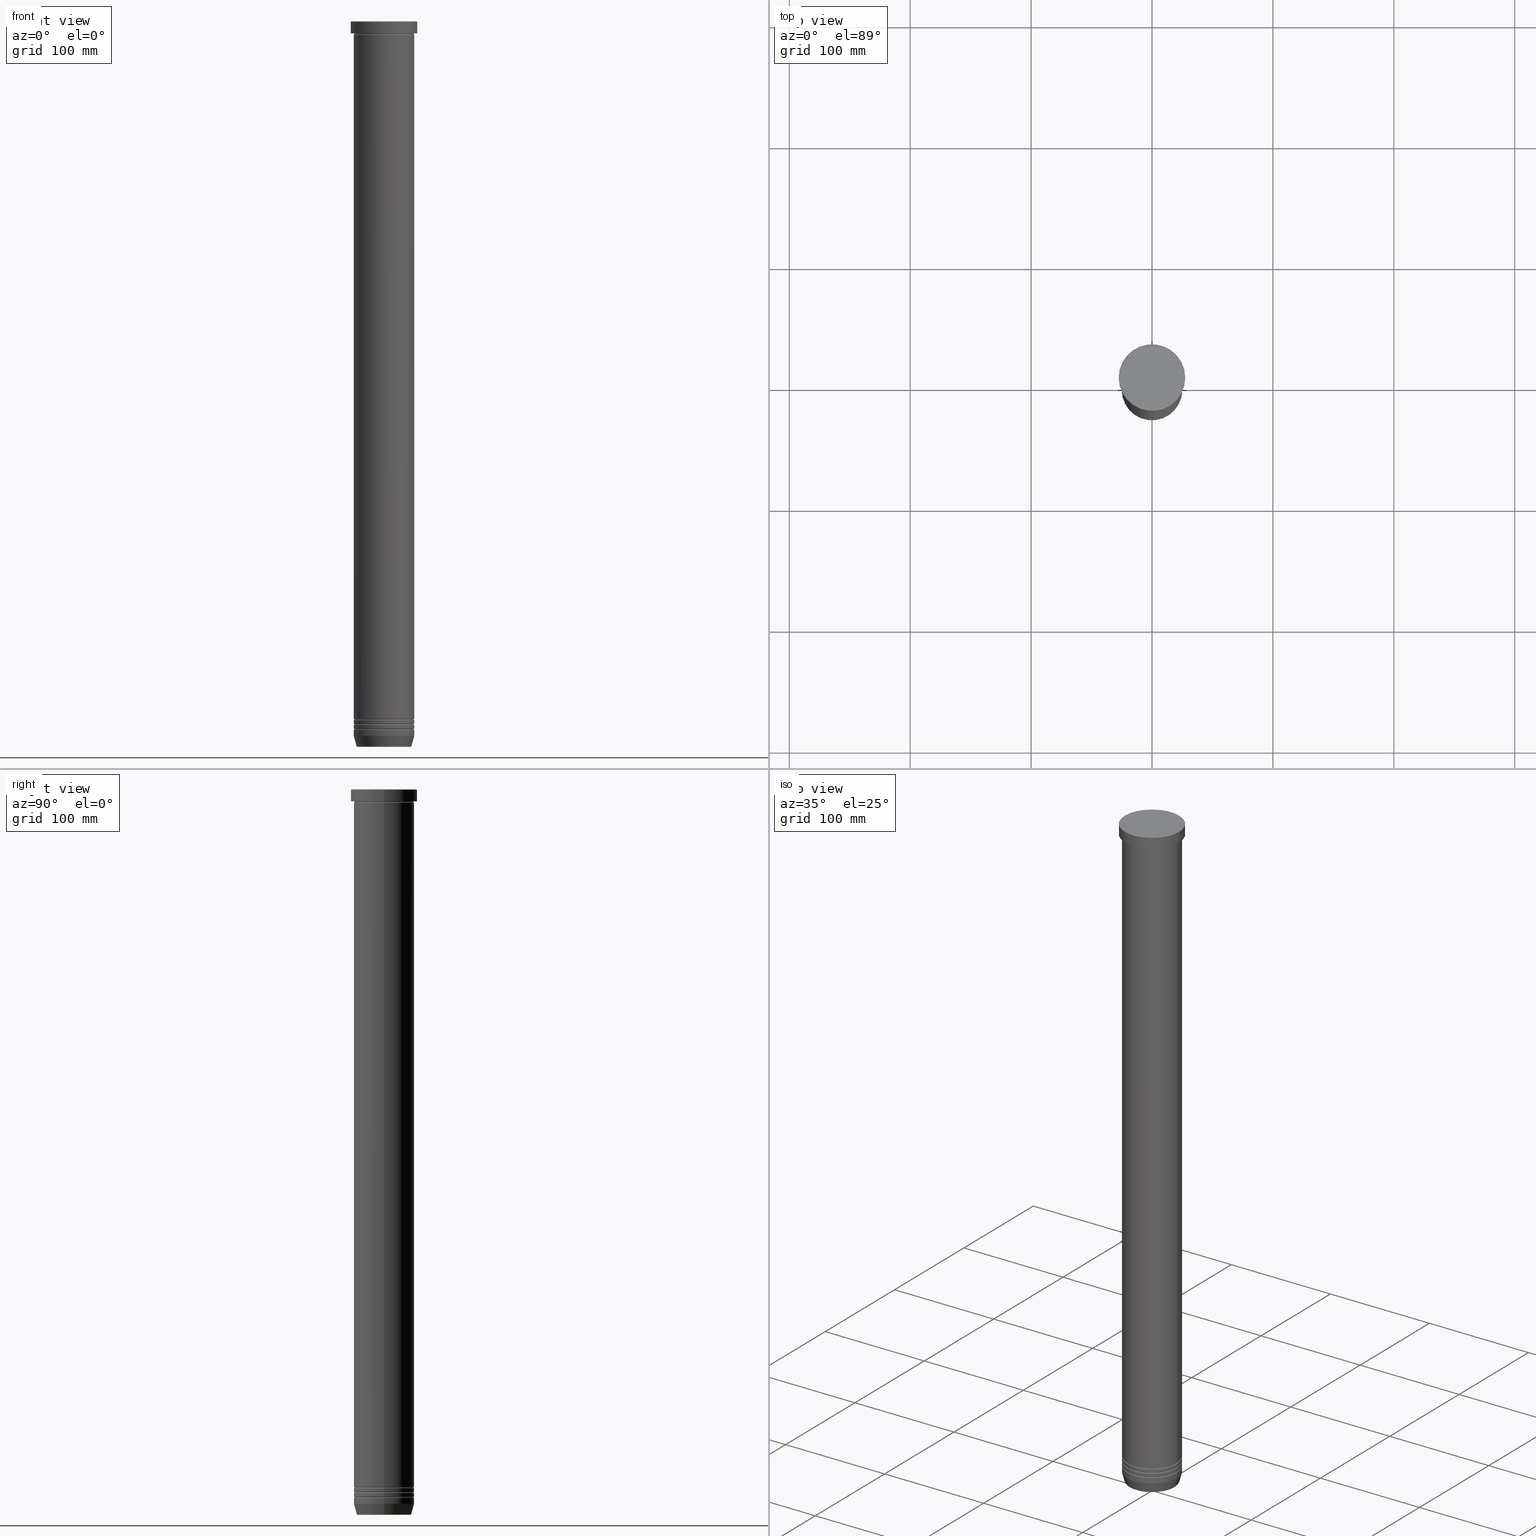
[diagram: canonical four-view strip — front | top / right | iso, engineering-drawing reading convention]
A machine part, canonical four-view strip (front | top / right | iso — engineering-drawing reading convention). The complete STEP part file that produces these views, byte-faithful:
ISO-10303-21;
HEADER;
FILE_DESCRIPTION (( 'STEP AP203' ),
    '1' );
FILE_NAME ('05cd.STEP',
    '2024-01-02T17:04:25',
    ( '' ),
    ( '' ),
    'SwSTEP 2.0',
    'SolidWorks 2019',
    '' );
FILE_SCHEMA (( 'CONFIG_CONTROL_DESIGN' ));
ENDSEC;

DATA;
#1 = CARTESIAN_POINT ( 'NONE',  ( 0.000000000000000000, 0.000000000000000000, -11.99999999999999822 ) ) ;
#2 = DIRECTION ( 'NONE',  ( 1.000000000000000000, 0.000000000000000000, 0.000000000000000000 ) ) ;
#3 = DIRECTION ( 'NONE',  ( 0.000000000000000000, 0.000000000000000000, -1.000000000000000000 ) ) ;
#4 = TOROIDAL_SURFACE ( 'NONE', #231, 22.20479377413039401, 0.5000000000000000000 ) ;
#5 = AXIS2_PLACEMENT_3D ( 'NONE', #1035, #134, #779 ) ;
#6 = AXIS2_PLACEMENT_3D ( 'NONE', #101, #531, #1015 ) ;
#7 = DIRECTION ( 'NONE',  ( -0.000000000000000000, -0.000000000000000000, 1.000000000000000000 ) ) ;
#8 = AXIS2_PLACEMENT_3D ( 'NONE', #881, #868, #542 ) ;
#9 = CARTESIAN_POINT ( 'NONE',  ( -25.00000000000000355, 3.061616997868383437E-15, -11.99999999999999822 ) ) ;
#10 = DIRECTION ( 'NONE',  ( 1.000000000000000000, 0.000000000000000000, 0.000000000000000000 ) ) ;
#11 = DIRECTION ( 'NONE',  ( 1.000000000000000000, 0.000000000000000000, 0.000000000000000000 ) ) ;
#12 = ORIENTED_EDGE ( 'NONE', *, *, #435, .T. ) ;
#13 = EDGE_CURVE ( 'NONE', #1026, #509, #786, .T. ) ;
#14 = EDGE_CURVE ( 'NONE', #119, #198, #799, .T. ) ;
#15 = ADVANCED_FACE ( 'NONE', ( #962 ), #4, .T. ) ;
#16 = CARTESIAN_POINT ( 'NONE',  ( -25.00000000000000000, 3.061616997868383043E-15, -10.49999999999999822 ) ) ;
#17 = ORIENTED_EDGE ( 'NONE', *, *, #392, .F. ) ;
#18 = CARTESIAN_POINT ( 'NONE',  ( 24.49999999999999289, 0.000000000000000000, -581.4999999999998863 ) ) ;
#19 = CARTESIAN_POINT ( 'NONE',  ( -24.99999999999999289, 3.061616997868382648E-15, -577.0000000000000000 ) ) ;
#20 = CIRCLE ( 'NONE', #964, 24.49999999999999289 ) ;
#21 = CYLINDRICAL_SURFACE ( 'NONE', #501, 25.00000000000000000 ) ;
#22 = CIRCLE ( 'NONE', #360, 24.99999999999999289 ) ;
#23 = AXIS2_PLACEMENT_3D ( 'NONE', #707, #625, #714 ) ;
#24 = ORIENTED_EDGE ( 'NONE', *, *, #554, .T. ) ;
#25 = LINE ( 'NONE', #447, #74 ) ;
#26 = DIRECTION ( 'NONE',  ( 0.000000000000000000, 0.000000000000000000, -1.000000000000000000 ) ) ;
#27 = DIRECTION ( 'NONE',  ( -0.7071067811865426878, 0.000000000000000000, -0.7071067811865524577 ) ) ;
#28 = CARTESIAN_POINT ( 'NONE',  ( 0.000000000000000000, 0.000000000000000000, -600.0000000000000000 ) ) ;
#29 = ORIENTED_EDGE ( 'NONE', *, *, #788, .T. ) ;
#30 = ORIENTED_EDGE ( 'NONE', *, *, #209, .T. ) ;
#31 = EDGE_CURVE ( 'NONE', #975, #98, #249, .T. ) ;
#32 = ORIENTED_EDGE ( 'NONE', *, *, #830, .T. ) ;
#33 = FACE_OUTER_BOUND ( 'NONE', #597, .T. ) ;
#34 = CARTESIAN_POINT ( 'NONE',  ( 0.000000000000000000, 0.000000000000000000, -585.4999999999998863 ) ) ;
#35 = CIRCLE ( 'NONE', #141, 24.49999999999999289 ) ;
#36 = VERTEX_POINT ( 'NONE', #404 ) ;
#37 = AXIS2_PLACEMENT_3D ( 'NONE', #842, #537, #857 ) ;
#38 = AXIS2_PLACEMENT_3D ( 'NONE', #188, #766, #515 ) ;
#39 = LOCAL_TIME ( 18, 4, 25.00000000000000000, #474 ) ;
#40 = CARTESIAN_POINT ( 'NONE',  ( 0.000000000000000000, 0.000000000000000000, -585.5000000000000000 ) ) ;
#41 = EDGE_LOOP ( 'NONE', ( #763, #187, #602, #51 ) ) ;
#42 = ORIENTED_EDGE ( 'NONE', *, *, #713, .F. ) ;
#43 = ADVANCED_FACE ( 'NONE', ( #314 ), #232, .T. ) ;
#44 = EDGE_CURVE ( 'NONE', #242, #823, #313, .T. ) ;
#45 = ORIENTED_EDGE ( 'NONE', *, *, #410, .F. ) ;
#46 = DIRECTION ( 'NONE',  ( 1.000000000000000000, 0.000000000000000000, 0.000000000000000000 ) ) ;
#47 = EDGE_CURVE ( 'NONE', #870, #583, #86, .T. ) ;
#48 = ORIENTED_EDGE ( 'NONE', *, *, #805, .T. ) ;
#49 = CARTESIAN_POINT ( 'NONE',  ( 24.99999999999999289, 3.061616997868382254E-15, -581.5000000000000000 ) ) ;
#50 = DIRECTION ( 'NONE',  ( 1.000000000000000000, 0.000000000000000000, 0.000000000000000000 ) ) ;
#51 = ORIENTED_EDGE ( 'NONE', *, *, #565, .T. ) ;
#52 = AXIS2_PLACEMENT_3D ( 'NONE', #396, #239, #550 ) ;
#53 = AXIS2_PLACEMENT_3D ( 'NONE', #837, #742, #11 ) ;
#54 = APPROVAL_DATE_TIME ( #302, #1014 ) ;
#55 = APPROVAL ( #800, 'NEUR�EN�' ) ;
#56 = AXIS2_PLACEMENT_3D ( 'NONE', #28, #680, #1020 ) ;
#57 = ORIENTED_EDGE ( 'NONE', *, *, #587, .F. ) ;
#58 = AXIS2_PLACEMENT_3D ( 'NONE', #498, #488, #95 ) ;
#59 = CIRCLE ( 'NONE', #23, 22.68775668727491635 ) ;
#60 = FACE_OUTER_BOUND ( 'NONE', #261, .T. ) ;
#61 = CARTESIAN_POINT ( 'NONE',  ( 24.50000000000000000, 0.000000000000000000, -10.49999999999999822 ) ) ;
#62 = VERTEX_POINT ( 'NONE', #563 ) ;
#63 = CALENDAR_DATE ( 2024, 2, 1 ) ;
#64 = CARTESIAN_POINT ( 'NONE',  ( 0.000000000000000000, 0.000000000000000000, -11.99999999999999822 ) ) ;
#65 = ADVANCED_FACE ( 'NONE', ( #641 ), #889, .T. ) ;
#66 = CARTESIAN_POINT ( 'NONE',  ( -25.00000000000000000, 3.061616997868383043E-15, 0.000000000000000000 ) ) ;
#67 = PERSON_AND_ORGANIZATION ( #846, #655 ) ;
#68 = ADVANCED_FACE ( 'NONE', ( #158 ), #121, .F. ) ;
#69 = CARTESIAN_POINT ( 'NONE',  ( 0.000000000000000000, 0.000000000000000000, -10.49999999999999822 ) ) ;
#70 = VERTEX_POINT ( 'NONE', #1061 ) ;
#71 = DIRECTION ( 'NONE',  ( 1.000000000000000000, 0.000000000000000000, 0.000000000000000000 ) ) ;
#72 = DIRECTION ( 'NONE',  ( 0.000000000000000000, 0.000000000000000000, -1.000000000000000000 ) ) ;
#73 = CALENDAR_DATE ( 2024, 2, 1 ) ;
#74 = VECTOR ( 'NONE', #27, 1000.000000000000000 ) ;
#75 = PLANE ( 'NONE',  #1056 ) ;
#76 = AXIS2_PLACEMENT_3D ( 'NONE', #978, #173, #406 ) ;
#77 = CARTESIAN_POINT ( 'NONE',  ( 0.000000000000000000, 0.000000000000000000, -582.0000000000000000 ) ) ;
#78 = ORIENTED_EDGE ( 'NONE', *, *, #840, .F. ) ;
#79 = DIRECTION ( 'NONE',  ( 1.000000000000000000, 0.000000000000000000, 0.000000000000000000 ) ) ;
#80 = DIRECTION ( 'NONE',  ( -1.000000000000000000, 1.224646799147349509E-16, 0.000000000000000000 ) ) ;
#81 = DIRECTION ( 'NONE',  ( 1.000000000000000000, 0.000000000000000000, 0.000000000000000000 ) ) ;
#82 = DIRECTION ( 'NONE',  ( -1.224646799147353207E-16, 1.000000000000000000, 0.000000000000000000 ) ) ;
#83 = DIRECTION ( 'NONE',  ( 0.000000000000000000, 0.000000000000000000, -1.000000000000000000 ) ) ;
#84 = FACE_OUTER_BOUND ( 'NONE', #684, .T. ) ;
#85 = EDGE_LOOP ( 'NONE', ( #806, #749, #646, #112 ) ) ;
#86 = CIRCLE ( 'NONE', #52, 0.5000000000000004441 ) ;
#87 = VECTOR ( 'NONE', #708, 1000.000000000000000 ) ;
#88 = AXIS2_PLACEMENT_3D ( 'NONE', #193, #523, #778 ) ;
#89 = FACE_OUTER_BOUND ( 'NONE', #825, .T. ) ;
#90 = CIRCLE ( 'NONE', #524, 22.20479377413039401 ) ;
#91 = CC_DESIGN_APPROVAL ( #55, ( #623 ) ) ;
#92 = CARTESIAN_POINT ( 'NONE',  ( 0.000000000000000000, 0.000000000000000000, 0.000000000000000000 ) ) ;
#93 = ORIENTED_EDGE ( 'NONE', *, *, #675, .F. ) ;
#94 = ADVANCED_FACE ( 'NONE', ( #484 ), #490, .T. ) ;
#95 = DIRECTION ( 'NONE',  ( -1.000000000000000000, 1.224646799147349509E-16, 0.000000000000000000 ) ) ;
#96 = ADVANCED_FACE ( 'NONE', ( #673 ), #617, .F. ) ;
#97 = CARTESIAN_POINT ( 'NONE',  ( -25.00000000000000000, 3.061616997868383043E-15, -591.0000000000000000 ) ) ;
#98 = VERTEX_POINT ( 'NONE', #427 ) ;
#99 = DIRECTION ( 'NONE',  ( 1.000000000000000000, 0.000000000000000000, 0.000000000000000000 ) ) ;
#100 = CYLINDRICAL_SURFACE ( 'NONE', #945, 25.00000000000000000 ) ;
#101 = CARTESIAN_POINT ( 'NONE',  ( 24.99999999999999289, 3.061616997868382254E-15, -577.5000000000000000 ) ) ;
#102 = FACE_OUTER_BOUND ( 'NONE', #876, .T. ) ;
#103 = CIRCLE ( 'NONE', #268, 0.5000000000000004441 ) ;
#104 = AXIS2_PLACEMENT_3D ( 'NONE', #440, #927, #280 ) ;
#105 = VERTEX_POINT ( 'NONE', #9 ) ;
#106 = ADVANCED_FACE ( 'NONE', ( #412 ), #21, .T. ) ;
#107 = DIRECTION ( 'NONE',  ( 1.000000000000000000, 0.000000000000000000, 0.000000000000000000 ) ) ;
#108 = DIRECTION ( 'NONE',  ( 1.000000000000000000, 0.000000000000000000, 0.000000000000000000 ) ) ;
#109 = EDGE_CURVE ( 'NONE', #156, #119, #347, .T. ) ;
#110 = ORIENTED_EDGE ( 'NONE', *, *, #14, .T. ) ;
#111 = ORIENTED_EDGE ( 'NONE', *, *, #610, .F. ) ;
#112 = ORIENTED_EDGE ( 'NONE', *, *, #977, .F. ) ;
#113 = ORIENTED_EDGE ( 'NONE', *, *, #939, .T. ) ;
#114 = DIRECTION ( 'NONE',  ( 1.000000000000000000, 0.000000000000000000, 0.000000000000000000 ) ) ;
#115 = FACE_OUTER_BOUND ( 'NONE', #466, .T. ) ;
#116 = ORIENTED_EDGE ( 'NONE', *, *, #692, .F. ) ;
#117 = ORIENTED_EDGE ( 'NONE', *, *, #745, .T. ) ;
#118 = ADVANCED_FACE ( 'NONE', ( #1010 ), #668, .F. ) ;
#119 = VERTEX_POINT ( 'NONE', #97 ) ;
#120 = CARTESIAN_POINT ( 'NONE',  ( -25.00000000000000355, 3.061616997868383437E-15, -582.0000000000000000 ) ) ;
#121 = TOROIDAL_SURFACE ( 'NONE', #139, 24.99999999999999289, 0.5000000000000000000 ) ;
#122 = DIRECTION ( 'NONE',  ( 1.000000000000000000, 0.000000000000000000, 0.000000000000000000 ) ) ;
#123 = ADVANCED_FACE ( 'NONE', ( #341 ), #582, .T. ) ;
#124 = CIRCLE ( 'NONE', #485, 27.50000000000000000 ) ;
#125 = TOROIDAL_SURFACE ( 'NONE', #755, 25.00000000000000000, 0.5000000000000000000 ) ;
#126 = ADVANCED_FACE ( 'NONE', ( #828 ), #179, .T. ) ;
#127 = ORIENTED_EDGE ( 'NONE', *, *, #725, .F. ) ;
#128 = ORIENTED_EDGE ( 'NONE', *, *, #423, .F. ) ;
#129 = CARTESIAN_POINT ( 'NONE',  ( 0.000000000000000000, 0.000000000000000000, -581.0000000000000000 ) ) ;
#130 = CARTESIAN_POINT ( 'NONE',  ( 24.99999999999999289, 0.000000000000000000, -577.4999999999998863 ) ) ;
#131 = ORIENTED_EDGE ( 'NONE', *, *, #470, .T. ) ;
#132 = ADVANCED_FACE ( 'NONE', ( #911 ), #176, .T. ) ;
#133 = CARTESIAN_POINT ( 'NONE',  ( 0.000000000000000000, 0.000000000000000000, -577.5000000000000000 ) ) ;
#134 = DIRECTION ( 'NONE',  ( -0.000000000000000000, -0.000000000000000000, 1.000000000000000000 ) ) ;
#135 = EDGE_CURVE ( 'NONE', #388, #614, #250, .T. ) ;
#136 = DIRECTION ( 'NONE',  ( -1.000000000000000000, 0.000000000000000000, 0.000000000000000000 ) ) ;
#137 = DIRECTION ( 'NONE',  ( 1.000000000000000000, 0.000000000000000000, 0.000000000000000000 ) ) ;
#138 = ORIENTED_EDGE ( 'NONE', *, *, #383, .T. ) ;
#139 = AXIS2_PLACEMENT_3D ( 'NONE', #901, #815, #79 ) ;
#140 = CARTESIAN_POINT ( 'NONE',  ( 24.99999999999999289, 3.061616997868382254E-15, -585.5000000000000000 ) ) ;
#141 = AXIS2_PLACEMENT_3D ( 'NONE', #200, #849, #621 ) ;
#142 = SECURITY_CLASSIFICATION_LEVEL ( 'unclassified' ) ;
#143 = VECTOR ( 'NONE', #925, 1000.000000000000000 ) ;
#144 = CIRCLE ( 'NONE', #793, 25.00000000000000000 ) ;
#145 = CARTESIAN_POINT ( 'NONE',  ( -27.50000000000000000, 3.367778697655221307E-15, -9.999999999999998224 ) ) ;
#146 = DIRECTION ( 'NONE',  ( -0.000000000000000000, -1.000000000000000000, -0.000000000000000000 ) ) ;
#147 = DIRECTION ( 'NONE',  ( 1.000000000000000000, 0.000000000000000000, 0.000000000000000000 ) ) ;
#148 = PERSON_AND_ORGANIZATION ( #846, #655 ) ;
#149 = CARTESIAN_POINT ( 'NONE',  ( -24.49999999999999289, 3.031000827889698467E-15, -577.4999999999998863 ) ) ;
#150 = EDGE_CURVE ( 'NONE', #438, #723, #351, .T. ) ;
#151 = CARTESIAN_POINT ( 'NONE',  ( 25.00000000000000000, 0.000000000000000000, -582.0000000000000000 ) ) ;
#152 = VERTEX_POINT ( 'NONE', #18 ) ;
#153 = COORDINATED_UNIVERSAL_TIME_OFFSET ( 1, 0, .AHEAD. ) ;
#154 = DIRECTION ( 'NONE',  ( -1.000000000000000000, 0.000000000000000000, 0.000000000000000000 ) ) ;
#155 = CARTESIAN_POINT ( 'NONE',  ( 0.000000000000000000, 0.000000000000000000, 0.000000000000000000 ) ) ;
#156 = VERTEX_POINT ( 'NONE', #926 ) ;
#157 = ADVANCED_FACE ( 'NONE', ( #271 ), #160, .F. ) ;
#158 = FACE_OUTER_BOUND ( 'NONE', #839, .T. ) ;
#159 = EDGE_CURVE ( 'NONE', #723, #453, #1002, .T. ) ;
#160 = TOROIDAL_SURFACE ( 'NONE', #53, 24.99999999999999289, 0.5000000000000000000 ) ;
#161 = ADVANCED_FACE ( 'NONE', ( #417 ), #100, .T. ) ;
#162 = CONICAL_SURFACE ( 'NONE', #701, 27.00000000000000711, 0.7853981633974415066 ) ;
#163 = PLANE ( 'NONE',  #399 ) ;
#164 = AXIS2_PLACEMENT_3D ( 'NONE', #331, #643, #903 ) ;
#165 = LINE ( 'NONE', #833, #845 ) ;
#166 = ORIENTED_EDGE ( 'NONE', *, *, #470, .F. ) ;
#167 = ORIENTED_EDGE ( 'NONE', *, *, #303, .T. ) ;
#168 = ORIENTED_EDGE ( 'NONE', *, *, #424, .T. ) ;
#169 = CARTESIAN_POINT ( 'NONE',  ( 25.00000000000000000, 0.000000000000000000, -586.0000000000000000 ) ) ;
#170 = CC_DESIGN_DATE_AND_TIME_ASSIGNMENT ( #885, #386, ( #623 ) ) ;
#171 = CARTESIAN_POINT ( 'NONE',  ( 25.00000000000000000, 3.061616997868383043E-15, -10.49999999999999822 ) ) ;
#172 = APPLICATION_CONTEXT ( 'configuration controlled 3d designs of mechanical parts and assemblies' ) ;
#173 = DIRECTION ( 'NONE',  ( 0.000000000000000000, 0.000000000000000000, -1.000000000000000000 ) ) ;
#174 = DIRECTION ( 'NONE',  ( 1.000000000000000000, 0.000000000000000000, 0.000000000000000000 ) ) ;
#175 = ORIENTED_EDGE ( 'NONE', *, *, #378, .F. ) ;
#176 = CYLINDRICAL_SURFACE ( 'NONE', #981, 25.00000000000000000 ) ;
#177 = ORIENTED_EDGE ( 'NONE', *, *, #887, .F. ) ;
#178 = ORIENTED_EDGE ( 'NONE', *, *, #872, .T. ) ;
#179 = CONICAL_SURFACE ( 'NONE', #770, 27.00000000000000711, 0.7853981633974415066 ) ;
#180 = CIRCLE ( 'NONE', #620, 27.00000000000000711 ) ;
#181 = CARTESIAN_POINT ( 'NONE',  ( 0.000000000000000000, 0.000000000000000000, 0.000000000000000000 ) ) ;
#182 = VECTOR ( 'NONE', #475, 1000.000000000000000 ) ;
#183 = ORIENTED_EDGE ( 'NONE', *, *, #456, .T. ) ;
#184 = ORIENTED_EDGE ( 'NONE', *, *, #830, .F. ) ;
#185 = VERTEX_POINT ( 'NONE', #843 ) ;
#186 = DIRECTION ( 'NONE',  ( -0.000000000000000000, -0.000000000000000000, 1.000000000000000000 ) ) ;
#187 = ORIENTED_EDGE ( 'NONE', *, *, #841, .T. ) ;
#188 = CARTESIAN_POINT ( 'NONE',  ( 0.000000000000000000, 0.000000000000000000, -600.0000000000000000 ) ) ;
#189 = DIRECTION ( 'NONE',  ( -0.000000000000000000, -0.000000000000000000, 1.000000000000000000 ) ) ;
#190 = ADVANCED_FACE ( 'NONE', ( #102 ), #279, .F. ) ;
#191 = ADVANCED_FACE ( 'NONE', ( #577 ), #431, .F. ) ;
#192 = CIRCLE ( 'NONE', #1038, 0.4999999999999449329 ) ;
#193 = CARTESIAN_POINT ( 'NONE',  ( 0.000000000000000000, 0.000000000000000000, -585.5000000000000000 ) ) ;
#194 = AXIS2_PLACEMENT_3D ( 'NONE', #275, #611, #679 ) ;
#195 = CARTESIAN_POINT ( 'NONE',  ( 0.000000000000000000, 0.000000000000000000, -581.5000000000000000 ) ) ;
#196 = AXIS2_PLACEMENT_3D ( 'NONE', #181, #420, #665 ) ;
#197 = CIRCLE ( 'NONE', #601, 0.4999999999999449329 ) ;
#198 = VERTEX_POINT ( 'NONE', #613 ) ;
#199 = CARTESIAN_POINT ( 'NONE',  ( 22.20479377413039401, 0.000000000000000000, -600.0000000000000000 ) ) ;
#200 = CARTESIAN_POINT ( 'NONE',  ( 0.000000000000000000, 0.000000000000000000, -581.4999999999998863 ) ) ;
#201 = ORIENTED_EDGE ( 'NONE', *, *, #922, .F. ) ;
#202 = ORIENTED_EDGE ( 'NONE', *, *, #855, .F. ) ;
#203 = ADVANCED_FACE ( 'NONE', ( #276 ), #461, .F. ) ;
#204 = DIRECTION ( 'NONE',  ( 0.000000000000000000, 0.000000000000000000, -1.000000000000000000 ) ) ;
#205 = ADVANCED_FACE ( 'NONE', ( #115 ), #1053, .F. ) ;
#206 = CARTESIAN_POINT ( 'NONE',  ( -24.99999999999999645, 3.061616997868382648E-15, -581.0000000000000000 ) ) ;
#207 = ORIENTED_EDGE ( 'NONE', *, *, #378, .T. ) ;
#208 = ORIENTED_EDGE ( 'NONE', *, *, #855, .T. ) ;
#209 = EDGE_CURVE ( 'NONE', #98, #975, #572, .T. ) ;
#210 = DIRECTION ( 'NONE',  ( 0.000000000000000000, 0.000000000000000000, -1.000000000000000000 ) ) ;
#211 = EDGE_CURVE ( 'NONE', #743, #98, #192, .T. ) ;
#212 = VECTOR ( 'NONE', #385, 1000.000000000000000 ) ;
#213 = CARTESIAN_POINT ( 'NONE',  ( 0.000000000000000000, 6.735557395310440722E-14, -600.0000000000000000 ) ) ;
#214 = CIRCLE ( 'NONE', #916, 25.00000000000000000 ) ;
#215 = AXIS2_PLACEMENT_3D ( 'NONE', #852, #436, #1027 ) ;
#216 = LOCAL_TIME ( 18, 4, 25.00000000000000000, #807 ) ;
#217 = ADVANCED_FACE ( 'NONE', ( #286 ), #635, .F. ) ;
#218 = CARTESIAN_POINT ( 'NONE',  ( 0.000000000000000000, 0.000000000000000000, -577.0000000000000000 ) ) ;
#219 = DIRECTION ( 'NONE',  ( -0.000000000000000000, -0.000000000000000000, 1.000000000000000000 ) ) ;
#220 = ORIENTED_EDGE ( 'NONE', *, *, #872, .F. ) ;
#221 = ORIENTED_EDGE ( 'NONE', *, *, #472, .F. ) ;
#222 = PERSON_AND_ORGANIZATION ( #846, #655 ) ;
#223 = ORIENTED_EDGE ( 'NONE', *, *, #150, .T. ) ;
#224 = FACE_OUTER_BOUND ( 'NONE', #405, .T. ) ;
#225 = ORIENTED_EDGE ( 'NONE', *, *, #713, .T. ) ;
#226 = DIRECTION ( 'NONE',  ( -0.000000000000000000, -0.000000000000000000, 1.000000000000000000 ) ) ;
#227 = DIRECTION ( 'NONE',  ( 1.000000000000000000, 0.000000000000000000, 0.000000000000000000 ) ) ;
#228 = DIRECTION ( 'NONE',  ( 1.000000000000000000, 0.000000000000000000, 0.000000000000000000 ) ) ;
#229 = EDGE_CURVE ( 'NONE', #999, #152, #811, .T. ) ;
#230 = DIRECTION ( 'NONE',  ( 1.000000000000000000, 0.000000000000000000, 0.000000000000000000 ) ) ;
#231 = AXIS2_PLACEMENT_3D ( 'NONE', #980, #226, #729 ) ;
#232 = CYLINDRICAL_SURFACE ( 'NONE', #278, 25.00000000000000000 ) ;
#233 = VECTOR ( 'NONE', #858, 1000.000000000000000 ) ;
#234 = COORDINATED_UNIVERSAL_TIME_OFFSET ( 1, 0, .AHEAD. ) ;
#235 = AXIS2_PLACEMENT_3D ( 'NONE', #782, #883, #230 ) ;
#236 = AXIS2_PLACEMENT_3D ( 'NONE', #566, #480, #948 ) ;
#237 = FACE_OUTER_BOUND ( 'NONE', #513, .T. ) ;
#238 = CYLINDRICAL_SURFACE ( 'NONE', #235, 24.99999999999999645 ) ;
#239 = DIRECTION ( 'NONE',  ( -0.000000000000000000, -1.000000000000000000, -0.000000000000000000 ) ) ;
#240 = PERSON_AND_ORGANIZATION_ROLE ( 'creator' ) ;
#241 = DIRECTION ( 'NONE',  ( 1.000000000000000000, 0.000000000000000000, 0.000000000000000000 ) ) ;
#242 = VERTEX_POINT ( 'NONE', #1032 ) ;
#243 = CARTESIAN_POINT ( 'NONE',  ( -22.20479377413039401, 2.748875911406053211E-15, -600.0000000000000000 ) ) ;
#244 = ORIENTED_EDGE ( 'NONE', *, *, #887, .T. ) ;
#245 = EDGE_CURVE ( 'NONE', #823, #70, #437, .T. ) ;
#246 = FACE_OUTER_BOUND ( 'NONE', #1030, .T. ) ;
#247 = EDGE_LOOP ( 'NONE', ( #957, #113, #221, #175 ) ) ;
#248 = CARTESIAN_POINT ( 'NONE',  ( 0.000000000000000000, 0.000000000000000000, 0.000000000000000000 ) ) ;
#249 = CIRCLE ( 'NONE', #860, 24.49999999999999289 ) ;
#250 = CIRCLE ( 'NONE', #335, 0.5000000000000004441 ) ;
#251 = AXIS2_PLACEMENT_3D ( 'NONE', #822, #660, #909 ) ;
#252 = CC_DESIGN_PERSON_AND_ORGANIZATION_ASSIGNMENT ( #564, #890, ( #623 ) ) ;
#253 = AXIS2_PLACEMENT_3D ( 'NONE', #49, #321, #886 ) ;
#254 = CARTESIAN_POINT ( 'NONE',  ( -25.00000000000000000, 0.000000000000000000, -9.999999999999998224 ) ) ;
#255 = CC_DESIGN_SECURITY_CLASSIFICATION ( #623, ( #400 ) ) ;
#256 = ORIENTED_EDGE ( 'NONE', *, *, #725, .T. ) ;
#257 = DIRECTION ( 'NONE',  ( -0.000000000000000000, -0.000000000000000000, 1.000000000000000000 ) ) ;
#258 =( LENGTH_UNIT ( ) NAMED_UNIT ( * ) SI_UNIT ( .MILLI., .METRE. ) );
#259 = DIRECTION ( 'NONE',  ( 1.224646799147353207E-16, 1.000000000000000000, 0.000000000000000000 ) ) ;
#260 = DIRECTION ( 'NONE',  ( -1.000000000000000000, 0.000000000000000000, 0.000000000000000000 ) ) ;
#261 = EDGE_LOOP ( 'NONE', ( #288, #444 ) ) ;
#262 = EDGE_CURVE ( 'NONE', #363, #156, #844, .T. ) ;
#263 = FACE_OUTER_BOUND ( 'NONE', #272, .T. ) ;
#264 = ADVANCED_FACE ( 'NONE', ( #942 ), #767, .F. ) ;
#265 = DIRECTION ( 'NONE',  ( 1.000000000000000000, 0.000000000000000000, 0.000000000000000000 ) ) ;
#266 = CLOSED_SHELL ( 'NONE', ( #924, #203, #910, #598, #728, #96, #15, #65, #425, #801, #132, #94, #633, #161, #323, #264, #645, #615, #106, #494, #764, #191, #157, #205, #68, #190 ) ) ;
#267 = AXIS2_PLACEMENT_3D ( 'NONE', #955, #702, #71 ) ;
#268 = AXIS2_PLACEMENT_3D ( 'NONE', #16, #592, #921 ) ;
#269 = CARTESIAN_POINT ( 'NONE',  ( 0.000000000000000000, 0.000000000000000000, -578.0000000000000000 ) ) ;
#270 = CIRCLE ( 'NONE', #831, 25.00000000000000000 ) ;
#271 = FACE_OUTER_BOUND ( 'NONE', #1003, .T. ) ;
#272 = EDGE_LOOP ( 'NONE', ( #689, #284, #677, #578 ) ) ;
#273 = DIRECTION ( 'NONE',  ( -0.000000000000000000, -0.000000000000000000, 1.000000000000000000 ) ) ;
#274 = DIRECTION ( 'NONE',  ( 0.000000000000000000, 0.000000000000000000, -1.000000000000000000 ) ) ;
#275 = CARTESIAN_POINT ( 'NONE',  ( -24.99999999999999289, 3.061616997868382254E-15, -577.4999999999998863 ) ) ;
#276 = FACE_OUTER_BOUND ( 'NONE', #277, .T. ) ;
#277 = EDGE_LOOP ( 'NONE', ( #630, #951, #1013, #642 ) ) ;
#278 = AXIS2_PLACEMENT_3D ( 'NONE', #408, #638, #147 ) ;
#279 = TOROIDAL_SURFACE ( 'NONE', #294, 24.99999999999999289, 0.5000000000000000000 ) ;
#280 = DIRECTION ( 'NONE',  ( 1.000000000000000000, 0.000000000000000000, 0.000000000000000000 ) ) ;
#281 = CIRCLE ( 'NONE', #1024, 24.99999999999999645 ) ;
#282 = CARTESIAN_POINT ( 'NONE',  ( 25.00000000000000000, 0.000000000000000000, -11.00000000000000000 ) ) ;
#283 = TOROIDAL_SURFACE ( 'NONE', #362, 24.99999999999999289, 0.5000000000000000000 ) ;
#284 = ORIENTED_EDGE ( 'NONE', *, *, #418, .T. ) ;
#285 = DIRECTION ( 'NONE',  ( -0.000000000000000000, -0.000000000000000000, 1.000000000000000000 ) ) ;
#286 = FACE_OUTER_BOUND ( 'NONE', #917, .T. ) ;
#287 = EDGE_LOOP ( 'NONE', ( #711, #307, #445, #864 ) ) ;
#288 = ORIENTED_EDGE ( 'NONE', *, *, #44, .F. ) ;
#289 = ORIENTED_EDGE ( 'NONE', *, *, #840, .T. ) ;
#290 = DIRECTION ( 'NONE',  ( 0.000000000000000000, -1.000000000000000000, 0.000000000000000000 ) ) ;
#291 = DIRECTION ( 'NONE',  ( 1.000000000000000000, 0.000000000000000000, 0.000000000000000000 ) ) ;
#292 = DIRECTION ( 'NONE',  ( -0.000000000000000000, -0.000000000000000000, 1.000000000000000000 ) ) ;
#293 = CARTESIAN_POINT ( 'NONE',  ( 25.00000000000000000, 0.000000000000000000, -11.99999999999999822 ) ) ;
#294 = AXIS2_PLACEMENT_3D ( 'NONE', #905, #495, #824 ) ;
#295 =( NAMED_UNIT ( * ) SI_UNIT ( $, .STERADIAN. ) SOLID_ANGLE_UNIT ( ) );
#296 = CIRCLE ( 'NONE', #900, 24.99999999999999289 ) ;
#297 = CARTESIAN_POINT ( 'NONE',  ( 0.000000000000000000, 0.000000000000000000, -581.5000000000000000 ) ) ;
#298 = CARTESIAN_POINT ( 'NONE',  ( 0.000000000000000000, 0.000000000000000000, -585.0000000000000000 ) ) ;
#299 = EDGE_CURVE ( 'NONE', #458, #453, #528, .T. ) ;
#300 = VERTEX_POINT ( 'NONE', #293 ) ;
#301 = DIRECTION ( 'NONE',  ( 1.000000000000000000, 0.000000000000000000, 0.000000000000000000 ) ) ;
#302 = DATE_AND_TIME ( #972, #468 ) ;
#303 = EDGE_CURVE ( 'NONE', #152, #421, #35, .T. ) ;
#304 = CARTESIAN_POINT ( 'NONE',  ( 25.00000000000000000, 0.000000000000000000, -11.99999999999999822 ) ) ;
#305 = DIRECTION ( 'NONE',  ( -0.000000000000000000, -0.000000000000000000, 1.000000000000000000 ) ) ;
#306 = ORIENTED_EDGE ( 'NONE', *, *, #985, .F. ) ;
#307 = ORIENTED_EDGE ( 'NONE', *, *, #419, .T. ) ;
#308 = CARTESIAN_POINT ( 'NONE',  ( 0.000000000000000000, 0.000000000000000000, 0.000000000000000000 ) ) ;
#309 = DIRECTION ( 'NONE',  ( 1.000000000000000000, 0.000000000000000000, 0.000000000000000000 ) ) ;
#310 = ORIENTED_EDGE ( 'NONE', *, *, #678, .F. ) ;
#311 = DIRECTION ( 'NONE',  ( -0.000000000000000000, -0.000000000000000000, 1.000000000000000000 ) ) ;
#312 = EDGE_CURVE ( 'NONE', #70, #529, #124, .T. ) ;
#313 = CIRCLE ( 'NONE', #734, 27.50000000000000000 ) ;
#314 = FACE_OUTER_BOUND ( 'NONE', #663, .T. ) ;
#315 = AXIS2_PLACEMENT_3D ( 'NONE', #195, #1016, #367 ) ;
#316 = COORDINATED_UNIVERSAL_TIME_OFFSET ( 1, 0, .AHEAD. ) ;
#317 = AXIS2_PLACEMENT_3D ( 'NONE', #982, #186, #81 ) ;
#318 = CIRCLE ( 'NONE', #339, 24.99999999999999289 ) ;
#319 = EDGE_CURVE ( 'NONE', #62, #119, #879, .T. ) ;
#320 = APPROVAL_PERSON_ORGANIZATION ( #545, #516, #958 ) ;
#321 = DIRECTION ( 'NONE',  ( -1.224646799147353207E-16, 1.000000000000000000, 0.000000000000000000 ) ) ;
#322 = DIRECTION ( 'NONE',  ( -0.000000000000000000, -0.000000000000000000, 1.000000000000000000 ) ) ;
#323 = ADVANCED_FACE ( 'NONE', ( #762 ), #521, .T. ) ;
#324 = ORIENTED_EDGE ( 'NONE', *, *, #319, .T. ) ;
#325 = VERTEX_POINT ( 'NONE', #282 ) ;
#326 = CARTESIAN_POINT ( 'NONE',  ( 25.00000000000000000, 0.000000000000000000, 0.000000000000000000 ) ) ;
#327 = ORIENTED_EDGE ( 'NONE', *, *, #808, .T. ) ;
#328 = ORIENTED_EDGE ( 'NONE', *, *, #441, .T. ) ;
#329 = ORIENTED_EDGE ( 'NONE', *, *, #562, .F. ) ;
#330 = CC_DESIGN_PERSON_AND_ORGANIZATION_ASSIGNMENT ( #796, #871, ( #400 ) ) ;
#331 = CARTESIAN_POINT ( 'NONE',  ( -24.99999999999999289, 0.000000000000000000, -577.5000000000000000 ) ) ;
#332 = DIRECTION ( 'NONE',  ( -0.000000000000000000, -0.000000000000000000, 1.000000000000000000 ) ) ;
#333 = DIRECTION ( 'NONE',  ( 1.000000000000000000, 0.000000000000000000, 0.000000000000000000 ) ) ;
#334 = VERTEX_POINT ( 'NONE', #604 ) ;
#335 = AXIS2_PLACEMENT_3D ( 'NONE', #171, #667, #986 ) ;
#336 = AXIS2_PLACEMENT_3D ( 'NONE', #366, #290, #210 ) ;
#337 = CIRCLE ( 'NONE', #984, 25.00000000000000000 ) ;
#338 = DIRECTION ( 'NONE',  ( 1.000000000000000000, 0.000000000000000000, 0.000000000000000000 ) ) ;
#339 = AXIS2_PLACEMENT_3D ( 'NONE', #409, #820, #733 ) ;
#340 = CARTESIAN_POINT ( 'NONE',  ( 24.49999999999999289, 0.000000000000000000, -585.4999999999998863 ) ) ;
#341 = FACE_OUTER_BOUND ( 'NONE', #647, .T. ) ;
#342 = DIRECTION ( 'NONE',  ( -0.000000000000000000, -0.000000000000000000, 1.000000000000000000 ) ) ;
#343 = ORIENTED_EDGE ( 'NONE', *, *, #565, .F. ) ;
#344 = ORIENTED_EDGE ( 'NONE', *, *, #985, .T. ) ;
#345 = CARTESIAN_POINT ( 'NONE',  ( 25.00000000000000000, 0.000000000000000000, -10.49999999999999822 ) ) ;
#346 = ORIENTED_EDGE ( 'NONE', *, *, #1033, .F. ) ;
#347 = LINE ( 'NONE', #652, #810 ) ;
#348 = CIRCLE ( 'NONE', #432, 0.5000000000000004441 ) ;
#349 = FACE_OUTER_BOUND ( 'NONE', #381, .T. ) ;
#350 = CIRCLE ( 'NONE', #703, 24.99999999999999645 ) ;
#351 = LINE ( 'NONE', #748, #787 ) ;
#352 = EDGE_CURVE ( 'NONE', #509, #36, #20, .T. ) ;
#353 = CARTESIAN_POINT ( 'NONE',  ( -25.00000000000000000, 3.061616997868383043E-15, 0.000000000000000000 ) ) ;
#354 = CC_DESIGN_PERSON_AND_ORGANIZATION_ASSIGNMENT ( #67, #240, ( #534 ) ) ;
#355 = PLANE ( 'NONE',  #965 ) ;
#356 = CARTESIAN_POINT ( 'NONE',  ( 0.000000000000000000, 0.000000000000000000, -0.5000000000000004441 ) ) ;
#357 = VERTEX_POINT ( 'NONE', #206 ) ;
#358 = VECTOR ( 'NONE', #384, 1000.000000000000000 ) ;
#359 = CARTESIAN_POINT ( 'NONE',  ( 0.000000000000000000, 0.000000000000000000, -600.0000000000000000 ) ) ;
#360 = AXIS2_PLACEMENT_3D ( 'NONE', #716, #804, #394 ) ;
#361 = DIRECTION ( 'NONE',  ( -0.000000000000000000, -0.000000000000000000, 1.000000000000000000 ) ) ;
#362 = AXIS2_PLACEMENT_3D ( 'NONE', #297, #1055, #700 ) ;
#363 = VERTEX_POINT ( 'NONE', #532 ) ;
#364 = ORIENTED_EDGE ( 'NONE', *, *, #419, .F. ) ;
#365 = EDGE_LOOP ( 'NONE', ( #42, #256, #168, #111 ) ) ;
#366 = CARTESIAN_POINT ( 'NONE',  ( 22.20479377413039401, 0.000000000000000000, -599.5000000000000000 ) ) ;
#367 = DIRECTION ( 'NONE',  ( -1.000000000000000000, 0.000000000000000000, 0.000000000000000000 ) ) ;
#368 = EDGE_CURVE ( 'NONE', #783, #483, #719, .T. ) ;
#369 = EDGE_LOOP ( 'NONE', ( #32, #29 ) ) ;
#370 = FACE_OUTER_BOUND ( 'NONE', #85, .T. ) ;
#371 = CARTESIAN_POINT ( 'NONE',  ( 24.99999999999999289, 0.000000000000000000, -581.4999999999998863 ) ) ;
#372 = ORIENTED_EDGE ( 'NONE', *, *, #312, .F. ) ;
#373 = CARTESIAN_POINT ( 'NONE',  ( 24.99999999999999645, 0.000000000000000000, 0.000000000000000000 ) ) ;
#374 = DIRECTION ( 'NONE',  ( 1.000000000000000000, 0.000000000000000000, 0.000000000000000000 ) ) ;
#375 = ORIENTED_EDGE ( 'NONE', *, *, #1033, .T. ) ;
#376 = AXIS2_PLACEMENT_3D ( 'NONE', #776, #219, #108 ) ;
#377 = ORIENTED_EDGE ( 'NONE', *, *, #692, .T. ) ;
#378 = EDGE_CURVE ( 'NONE', #906, #325, #898, .T. ) ;
#379 = CIRCLE ( 'NONE', #590, 27.00000000000000711 ) ;
#380 = AXIS2_PLACEMENT_3D ( 'NONE', #1034, #292, #114 ) ;
#381 = EDGE_LOOP ( 'NONE', ( #622, #117, #669, #1017 ) ) ;
#382 = DIRECTION ( 'NONE',  ( -0.000000000000000000, -0.000000000000000000, 1.000000000000000000 ) ) ;
#383 = EDGE_CURVE ( 'NONE', #363, #62, #1057, .T. ) ;
#384 = DIRECTION ( 'NONE',  ( -0.000000000000000000, -0.000000000000000000, 1.000000000000000000 ) ) ;
#385 = DIRECTION ( 'NONE',  ( -0.000000000000000000, -0.000000000000000000, 1.000000000000000000 ) ) ;
#386 = DATE_TIME_ROLE ( 'classification_date' ) ;
#387 = DIRECTION ( 'NONE',  ( 1.000000000000000000, 0.000000000000000000, 0.000000000000000000 ) ) ;
#388 = VERTEX_POINT ( 'NONE', #61 ) ;
#389 = CARTESIAN_POINT ( 'NONE',  ( -27.00000000000000711, 0.000000000000000000, 0.000000000000000000 ) ) ;
#390 = ORIENTED_EDGE ( 'NONE', *, *, #939, .F. ) ;
#391 = APPROVAL_ROLE ( '' ) ;
#392 = EDGE_CURVE ( 'NONE', #105, #300, #520, .T. ) ;
#393 = DIRECTION ( 'NONE',  ( -0.000000000000000000, -0.000000000000000000, 1.000000000000000000 ) ) ;
#394 = DIRECTION ( 'NONE',  ( 1.000000000000000000, 0.000000000000000000, 0.000000000000000000 ) ) ;
#395 = AXIS2_PLACEMENT_3D ( 'NONE', #819, #732, #301 ) ;
#396 = CARTESIAN_POINT ( 'NONE',  ( -25.00000000000000000, 0.000000000000000000, -10.49999999999999822 ) ) ;
#397 = VECTOR ( 'NONE', #636, 1000.000000000000114 ) ;
#398 = AXIS2_PLACEMENT_3D ( 'NONE', #411, #415, #741 ) ;
#399 = AXIS2_PLACEMENT_3D ( 'NONE', #569, #487, #338 ) ;
#400 = PRODUCT_DEFINITION_FORMATION_WITH_SPECIFIED_SOURCE ( 'LIBOVOLN�', '', #737, .NOT_KNOWN. ) ;
#401 = CARTESIAN_POINT ( 'NONE',  ( -25.00000000000000000, 3.061616997868383043E-15, 0.000000000000000000 ) ) ;
#402 = CARTESIAN_POINT ( 'NONE',  ( 0.000000000000000000, 0.000000000000000000, -591.0000000000000000 ) ) ;
#403 = APPLICATION_CONTEXT ( 'configuration controlled 3d designs of mechanical parts and assemblies' ) ;
#404 = CARTESIAN_POINT ( 'NONE',  ( -24.49999999999999289, 3.031000827889698467E-15, -585.4999999999998863 ) ) ;
#405 = EDGE_LOOP ( 'NONE', ( #178, #992, #697, #1008 ) ) ;
#406 = DIRECTION ( 'NONE',  ( 1.000000000000000000, 0.000000000000000000, 0.000000000000000000 ) ) ;
#407 = CARTESIAN_POINT ( 'NONE',  ( 0.000000000000000000, 0.000000000000000000, -10.49999999999999822 ) ) ;
#408 = CARTESIAN_POINT ( 'NONE',  ( 0.000000000000000000, 0.000000000000000000, 0.000000000000000000 ) ) ;
#409 = CARTESIAN_POINT ( 'NONE',  ( 0.000000000000000000, 0.000000000000000000, -577.0000000000000000 ) ) ;
#410 = EDGE_CURVE ( 'NONE', #518, #105, #626, .T. ) ;
#411 = CARTESIAN_POINT ( 'NONE',  ( 0.000000000000000000, 0.000000000000000000, 0.000000000000000000 ) ) ;
#412 = FACE_OUTER_BOUND ( 'NONE', #365, .T. ) ;
#413 = VECTOR ( 'NONE', #629, 1000.000000000000000 ) ;
#414 = CONICAL_SURFACE ( 'NONE', #38, 22.58845726811988541, 0.2617993877991502960 ) ;
#415 = DIRECTION ( 'NONE',  ( -0.000000000000000000, -0.000000000000000000, 1.000000000000000000 ) ) ;
#416 = ORIENTED_EDGE ( 'NONE', *, *, #1048, .F. ) ;
#417 = FACE_OUTER_BOUND ( 'NONE', #287, .T. ) ;
#418 = EDGE_CURVE ( 'NONE', #438, #458, #1022, .T. ) ;
#419 = EDGE_CURVE ( 'NONE', #119, #62, #536, .T. ) ;
#420 = DIRECTION ( 'NONE',  ( -0.000000000000000000, -0.000000000000000000, 1.000000000000000000 ) ) ;
#421 = VERTEX_POINT ( 'NONE', #968 ) ;
#422 = CARTESIAN_POINT ( 'NONE',  ( 0.000000000000000000, 25.00000000000000000, -12.00000000000000000 ) ) ;
#423 = EDGE_CURVE ( 'NONE', #62, #1026, #792, .T. ) ;
#424 = EDGE_CURVE ( 'NONE', #999, #541, #894, .T. ) ;
#425 = ADVANCED_FACE ( 'NONE', ( #224 ), #238, .T. ) ;
#426 = DIRECTION ( 'NONE',  ( 1.000000000000000000, 0.000000000000000000, 0.000000000000000000 ) ) ;
#427 = CARTESIAN_POINT ( 'NONE',  ( 24.49999999999999289, 0.000000000000000000, -577.4999999999998863 ) ) ;
#428 = ORIENTED_EDGE ( 'NONE', *, *, #368, .F. ) ;
#429 = EDGE_CURVE ( 'NONE', #723, #421, #829, .T. ) ;
#430 = ORIENTED_EDGE ( 'NONE', *, *, #352, .T. ) ;
#431 = TOROIDAL_SURFACE ( 'NONE', #931, 24.99999999999999289, 0.5000000000000000000 ) ;
#432 = AXIS2_PLACEMENT_3D ( 'NONE', #672, #259, #650 ) ;
#433 = CARTESIAN_POINT ( 'NONE',  ( 0.000000000000000000, 0.000000000000000000, 0.000000000000000000 ) ) ;
#434 = VECTOR ( 'NONE', #1059, 1000.000000000000000 ) ;
#435 = EDGE_CURVE ( 'NONE', #453, #723, #214, .T. ) ;
#436 = DIRECTION ( 'NONE',  ( -0.000000000000000000, -0.000000000000000000, 1.000000000000000000 ) ) ;
#437 = LINE ( 'NONE', #869, #699 ) ;
#438 = VERTEX_POINT ( 'NONE', #556 ) ;
#439 = ORIENTED_EDGE ( 'NONE', *, *, #383, .F. ) ;
#440 = CARTESIAN_POINT ( 'NONE',  ( 0.000000000000000000, 0.000000000000000000, -9.999999999999998224 ) ) ;
#441 = EDGE_CURVE ( 'NONE', #300, #105, #880, .T. ) ;
#442 = DIRECTION ( 'NONE',  ( 1.000000000000000000, 0.000000000000000000, 0.000000000000000000 ) ) ;
#443 = ORIENTED_EDGE ( 'NONE', *, *, #838, .T. ) ;
#444 = ORIENTED_EDGE ( 'NONE', *, *, #745, .F. ) ;
#445 = ORIENTED_EDGE ( 'NONE', *, *, #423, .T. ) ;
#446 = AXIS2_PLACEMENT_3D ( 'NONE', #997, #257, #265 ) ;
#447 = CARTESIAN_POINT ( 'NONE',  ( -27.00000000000000711, 0.000000000000000000, 0.000000000000000000 ) ) ;
#448 = AXIS2_PLACEMENT_3D ( 'NONE', #561, #146, #875 ) ;
#449 = DIRECTION ( 'NONE',  ( -0.000000000000000000, -0.000000000000000000, 1.000000000000000000 ) ) ;
#450 = ORIENTED_EDGE ( 'NONE', *, *, #1036, .T. ) ;
#451 = CARTESIAN_POINT ( 'NONE',  ( 0.000000000000000000, -3.469446951953614189E-15, -11.99999999999999822 ) ) ;
#452 = DIRECTION ( 'NONE',  ( 0.000000000000000000, 0.000000000000000000, -1.000000000000000000 ) ) ;
#453 = VERTEX_POINT ( 'NONE', #151 ) ;
#454 = DATE_AND_TIME ( #706, #934 ) ;
#455 = CARTESIAN_POINT ( 'NONE',  ( 0.000000000000000000, 0.000000000000000000, -581.0000000000000000 ) ) ;
#456 = EDGE_CURVE ( 'NONE', #198, #1026, #1054, .T. ) ;
#457 = CARTESIAN_POINT ( 'NONE',  ( 0.000000000000000000, 0.000000000000000000, -586.0000000000000000 ) ) ;
#458 = VERTEX_POINT ( 'NONE', #798 ) ;
#459 = LINE ( 'NONE', #401, #182 ) ;
#460 = AXIS2_PLACEMENT_3D ( 'NONE', #140, #82, #473 ) ;
#461 = TOROIDAL_SURFACE ( 'NONE', #897, 24.99999999999999289, 0.5000000000000000000 ) ;
#462 = DIRECTION ( 'NONE',  ( 1.000000000000000000, 0.000000000000000000, 0.000000000000000000 ) ) ;
#463 = VERTEX_POINT ( 'NONE', #389 ) ;
#464 = CIRCLE ( 'NONE', #6, 0.5000000000000004441 ) ;
#465 = CIRCLE ( 'NONE', #654, 24.50000000000000000 ) ;
#466 = EDGE_LOOP ( 'NONE', ( #715, #12, #854, #375 ) ) ;
#467 = DIRECTION ( 'NONE',  ( 0.000000000000000000, 0.000000000000000000, 1.000000000000000000 ) ) ;
#468 = LOCAL_TIME ( 18, 4, 25.00000000000000000, #316 ) ;
#469 = DIRECTION ( 'NONE',  ( 1.000000000000000000, 0.000000000000000000, 0.000000000000000000 ) ) ;
#470 = EDGE_CURVE ( 'NONE', #458, #438, #22, .T. ) ;
#471 = DIRECTION ( 'NONE',  ( 1.000000000000000000, 0.000000000000000000, 0.000000000000000000 ) ) ;
#472 = EDGE_CURVE ( 'NONE', #325, #851, #772, .T. ) ;
#473 = DIRECTION ( 'NONE',  ( -1.000000000000000000, -1.224646799147349509E-16, 0.000000000000000000 ) ) ;
#474 = COORDINATED_UNIVERSAL_TIME_OFFSET ( 1, 0, .AHEAD. ) ;
#475 = DIRECTION ( 'NONE',  ( -0.000000000000000000, -0.000000000000000000, 1.000000000000000000 ) ) ;
#476 = CARTESIAN_POINT ( 'NONE',  ( 25.00000000000000000, 0.000000000000000000, 0.000000000000000000 ) ) ;
#477 = ORIENTED_EDGE ( 'NONE', *, *, #688, .T. ) ;
#478 = ORIENTED_EDGE ( 'NONE', *, *, #575, .F. ) ;
#479 = APPLICATION_PROTOCOL_DEFINITION ( 'international standard', 'config_control_design', 1994, #172 ) ;
#480 = DIRECTION ( 'NONE',  ( 0.000000000000000000, 0.000000000000000000, -1.000000000000000000 ) ) ;
#481 = CARTESIAN_POINT ( 'NONE',  ( 25.00000000000000000, 0.000000000000000000, 0.000000000000000000 ) ) ;
#482 = AXIS2_PLACEMENT_3D ( 'NONE', #248, #571, #895 ) ;
#483 = VERTEX_POINT ( 'NONE', #243 ) ;
#484 = FACE_OUTER_BOUND ( 'NONE', #1011, .T. ) ;
#485 = AXIS2_PLACEMENT_3D ( 'NONE', #356, #452, #949 ) ;
#486 = CIRCLE ( 'NONE', #863, 24.50000000000000000 ) ;
#487 = DIRECTION ( 'NONE',  ( 0.000000000000000000, -0.000000000000000000, 1.000000000000000000 ) ) ;
#488 = DIRECTION ( 'NONE',  ( 1.224646799147353207E-16, 1.000000000000000000, 0.000000000000000000 ) ) ;
#489 = EDGE_LOOP ( 'NONE', ( #443, #225, #78, #744 ) ) ;
#490 = CYLINDRICAL_SURFACE ( 'NONE', #395, 24.99999999999999645 ) ;
#491 = ADVANCED_FACE ( 'NONE', ( #727 ), #162, .T. ) ;
#492 = DIRECTION ( 'NONE',  ( -0.000000000000000000, -1.000000000000000000, -0.000000000000000000 ) ) ;
#493 = CARTESIAN_POINT ( 'NONE',  ( 25.00000000000000000, 0.000000000000000000, -578.0000000000000000 ) ) ;
#494 = ADVANCED_FACE ( 'NONE', ( #979 ), #899, .T. ) ;
#495 = DIRECTION ( 'NONE',  ( 0.000000000000000000, 0.000000000000000000, -1.000000000000000000 ) ) ;
#496 = DESIGN_CONTEXT ( 'detailed design', #403, 'design' ) ;
#497 = CARTESIAN_POINT ( 'NONE',  ( 24.99999999999999645, 0.000000000000000000, -581.0000000000000000 ) ) ;
#498 = CARTESIAN_POINT ( 'NONE',  ( -24.99999999999999289, 3.061616997868382254E-15, -581.4999999999998863 ) ) ;
#499 = DIRECTION ( 'NONE',  ( 1.000000000000000000, 0.000000000000000000, 0.000000000000000000 ) ) ;
#500 = EDGE_LOOP ( 'NONE', ( #588, #208, #138, #364 ) ) ;
#501 = AXIS2_PLACEMENT_3D ( 'NONE', #991, #915, #658 ) ;
#502 = ADVANCED_FACE ( 'NONE', ( #570 ), #511, .T. ) ;
#503 = AXIS2_PLACEMENT_3D ( 'NONE', #816, #656, #80 ) ;
#504 = APPROVAL_PERSON_ORGANIZATION ( #148, #55, #391 ) ;
#505 = DIRECTION ( 'NONE',  ( 1.000000000000000000, 0.000000000000000000, 0.000000000000000000 ) ) ;
#506 = CARTESIAN_POINT ( 'NONE',  ( 0.000000000000000000, 0.000000000000000000, -10.49999999999999822 ) ) ;
#507 = ORIENTED_EDGE ( 'NONE', *, *, #31, .F. ) ;
#508 = EDGE_CURVE ( 'NONE', #463, #334, #379, .T. ) ;
#509 = VERTEX_POINT ( 'NONE', #340 ) ;
#510 = ADVANCED_FACE ( 'NONE', ( #84 ), #125, .F. ) ;
#511 = CYLINDRICAL_SURFACE ( 'NONE', #1039, 25.00000000000000000 ) ;
#512 = DIRECTION ( 'NONE',  ( -1.000000000000000000, 0.000000000000000000, 0.000000000000000000 ) ) ;
#513 = EDGE_LOOP ( 'NONE', ( #803, #585, #167, #774 ) ) ;
#514 = ADVANCED_BREP_SHAPE_REPRESENTATION ( '05cd', ( #1018, #891, #671 ), #591 ) ;
#515 = DIRECTION ( 'NONE',  ( 1.000000000000000000, 0.000000000000000000, 0.000000000000000000 ) ) ;
#516 = APPROVAL ( #952, 'NEUR�EN�' ) ;
#517 = DIRECTION ( 'NONE',  ( 1.000000000000000000, 0.000000000000000000, 0.000000000000000000 ) ) ;
#518 = VERTEX_POINT ( 'NONE', #19 ) ;
#519 = ORIENTED_EDGE ( 'NONE', *, *, #612, .T. ) ;
#520 = CIRCLE ( 'NONE', #651, 25.00000000000000000 ) ;
#521 = CONICAL_SURFACE ( 'NONE', #56, 22.58845726811988541, 0.2617993877991502960 ) ;
#522 = CIRCLE ( 'NONE', #58, 0.5000000000000004441 ) ;
#523 = DIRECTION ( 'NONE',  ( 0.000000000000000000, 0.000000000000000000, -1.000000000000000000 ) ) ;
#524 = AXIS2_PLACEMENT_3D ( 'NONE', #359, #606, #937 ) ;
#525 = DIRECTION ( 'NONE',  ( 0.000000000000000000, -1.000000000000000000, 0.000000000000000000 ) ) ;
#526 = ORIENTED_EDGE ( 'NONE', *, *, #922, .T. ) ;
#527 = DIRECTION ( 'NONE',  ( 0.000000000000000000, 0.000000000000000000, -1.000000000000000000 ) ) ;
#528 = LINE ( 'NONE', #539, #233 ) ;
#529 = VERTEX_POINT ( 'NONE', #735 ) ;
#530 = ADVANCED_FACE ( 'NONE', ( #349 ), #990, .T. ) ;
#531 = DIRECTION ( 'NONE',  ( -1.224646799147353207E-16, 1.000000000000000000, 0.000000000000000000 ) ) ;
#532 = CARTESIAN_POINT ( 'NONE',  ( 22.68775668727491635, 0.000000000000000000, -599.6294095225513274 ) ) ;
#533 = ORIENTED_EDGE ( 'NONE', *, *, #435, .F. ) ;
#534 = PRODUCT_DEFINITION ( 'NEZN�M�', '', #400, #496 ) ;
#535 = ORIENTED_EDGE ( 'NONE', *, *, #229, .F. ) ;
#536 = CIRCLE ( 'NONE', #555, 25.00000000000000000 ) ;
#537 = DIRECTION ( 'NONE',  ( -0.000000000000000000, -0.000000000000000000, 1.000000000000000000 ) ) ;
#538 = CIRCLE ( 'NONE', #194, 0.5000000000000004441 ) ;
#539 = CARTESIAN_POINT ( 'NONE',  ( 24.99999999999999645, 0.000000000000000000, 0.000000000000000000 ) ) ;
#540 = CIRCLE ( 'NONE', #164, 0.4999999999999449329 ) ;
#541 = VERTEX_POINT ( 'NONE', #493 ) ;
#542 = DIRECTION ( 'NONE',  ( 0.000000000000000000, 0.000000000000000000, -1.000000000000000000 ) ) ;
#543 = CARTESIAN_POINT ( 'NONE',  ( 0.000000000000000000, 0.000000000000000000, -577.4999999999998863 ) ) ;
#544 = ORIENTED_EDGE ( 'NONE', *, *, #1048, .T. ) ;
#545 = PERSON_AND_ORGANIZATION ( #846, #655 ) ;
#546 = ORIENTED_EDGE ( 'NONE', *, *, #211, .T. ) ;
#547 = DIRECTION ( 'NONE',  ( -0.000000000000000000, -0.000000000000000000, 1.000000000000000000 ) ) ;
#548 = DIRECTION ( 'NONE',  ( -0.000000000000000000, -0.000000000000000000, 1.000000000000000000 ) ) ;
#549 = VERTEX_POINT ( 'NONE', #746 ) ;
#550 = DIRECTION ( 'NONE',  ( 0.000000000000000000, 0.000000000000000000, -1.000000000000000000 ) ) ;
#551 = APPROVAL_DATE_TIME ( #559, #516 ) ;
#552 = ORIENTED_EDGE ( 'NONE', *, *, #418, .F. ) ;
#553 = DIRECTION ( 'NONE',  ( 1.000000000000000000, 0.000000000000000000, 0.000000000000000000 ) ) ;
#554 = EDGE_CURVE ( 'NONE', #483, #156, #348, .T. ) ;
#555 = AXIS2_PLACEMENT_3D ( 'NONE', #402, #1051, #462 ) ;
#556 = CARTESIAN_POINT ( 'NONE',  ( -24.99999999999999289, 3.061616997868382648E-15, -585.0000000000000000 ) ) ;
#557 = TOROIDAL_SURFACE ( 'NONE', #88, 24.99999999999999289, 0.5000000000000000000 ) ;
#558 = CARTESIAN_POINT ( 'NONE',  ( 0.000000000000000000, 0.000000000000000000, -9.999999999999998224 ) ) ;
#559 = DATE_AND_TIME ( #785, #39 ) ;
#560 = FACE_OUTER_BOUND ( 'NONE', #765, .T. ) ;
#561 = CARTESIAN_POINT ( 'NONE',  ( -24.99999999999999289, 0.000000000000000000, -581.5000000000000000 ) ) ;
#562 = EDGE_CURVE ( 'NONE', #870, #851, #103, .T. ) ;
#563 = CARTESIAN_POINT ( 'NONE',  ( 25.00000000000000000, 0.000000000000000000, -591.0000000000000000 ) ) ;
#564 = PERSON_AND_ORGANIZATION ( #846, #655 ) ;
#565 = EDGE_CURVE ( 'NONE', #36, #509, #739, .T. ) ;
#566 = CARTESIAN_POINT ( 'NONE',  ( 0.000000000000000000, 0.000000000000000000, -0.5000000000000004441 ) ) ;
#567 = CARTESIAN_POINT ( 'NONE',  ( -24.99999999999999645, 3.061616997868382648E-15, 0.000000000000000000 ) ) ;
#568 = ORIENTED_EDGE ( 'NONE', *, *, #303, .F. ) ;
#569 = CARTESIAN_POINT ( 'NONE',  ( 0.000000000000000000, 0.000000000000000000, 0.000000000000000000 ) ) ;
#570 = FACE_OUTER_BOUND ( 'NONE', #247, .T. ) ;
#571 = DIRECTION ( 'NONE',  ( -0.000000000000000000, -0.000000000000000000, 1.000000000000000000 ) ) ;
#572 = CIRCLE ( 'NONE', #753, 24.49999999999999289 ) ;
#573 = AXIS2_PLACEMENT_3D ( 'NONE', #64, #960, #471 ) ;
#574 = CIRCLE ( 'NONE', #253, 0.5000000000000004441 ) ;
#575 = EDGE_CURVE ( 'NONE', #334, #529, #165, .T. ) ;
#576 = DIRECTION ( 'NONE',  ( -1.000000000000000000, 0.000000000000000000, -0.000000000000000000 ) ) ;
#577 = FACE_OUTER_BOUND ( 'NONE', #41, .T. ) ;
#578 = ORIENTED_EDGE ( 'NONE', *, *, #159, .F. ) ;
#579 = ORIENTED_EDGE ( 'NONE', *, *, #47, .T. ) ;
#580 = DIRECTION ( 'NONE',  ( 1.000000000000000000, 0.000000000000000000, 0.000000000000000000 ) ) ;
#581 = FACE_OUTER_BOUND ( 'NONE', #664, .T. ) ;
#582 = PLANE ( 'NONE',  #618 ) ;
#583 = VERTEX_POINT ( 'NONE', #254 ) ;
#584 = DIRECTION ( 'NONE',  ( 0.000000000000000000, -1.000000000000000000, 0.000000000000000000 ) ) ;
#585 = ORIENTED_EDGE ( 'NONE', *, *, #970, .T. ) ;
#586 = CARTESIAN_POINT ( 'NONE',  ( 0.000000000000000000, 0.000000000000000000, 0.000000000000000000 ) ) ;
#587 = EDGE_CURVE ( 'NONE', #388, #325, #1006, .T. ) ;
#588 = ORIENTED_EDGE ( 'NONE', *, *, #109, .F. ) ;
#589 = AXIS2_PLACEMENT_3D ( 'NONE', #506, #834, #260 ) ;
#590 = AXIS2_PLACEMENT_3D ( 'NONE', #594, #332, #10 ) ;
#591 =( GEOMETRIC_REPRESENTATION_CONTEXT ( 3 ) GLOBAL_UNCERTAINTY_ASSIGNED_CONTEXT ( ( #907 ) ) GLOBAL_UNIT_ASSIGNED_CONTEXT ( ( #258, #908, #295 ) ) REPRESENTATION_CONTEXT ( 'NONE', 'WORKASPACE' ) );
#592 = DIRECTION ( 'NONE',  ( 1.224646799147353207E-16, 1.000000000000000000, 0.000000000000000000 ) ) ;
#593 = DIRECTION ( 'NONE',  ( -0.2588190451025215166, 3.169619151431774802E-17, 0.9659258262890679791 ) ) ;
#594 = CARTESIAN_POINT ( 'NONE',  ( 0.000000000000000000, 0.000000000000000000, 0.000000000000000000 ) ) ;
#595 = DIRECTION ( 'NONE',  ( -1.000000000000000000, 0.000000000000000000, -0.000000000000000000 ) ) ;
#596 = DIRECTION ( 'NONE',  ( -1.000000000000000000, 0.000000000000000000, 0.000000000000000000 ) ) ;
#597 = EDGE_LOOP ( 'NONE', ( #609, #784, #771, #439 ) ) ;
#598 = ADVANCED_FACE ( 'NONE', ( #581 ), #983, .F. ) ;
#599 = AXIS2_PLACEMENT_3D ( 'NONE', #213, #930, #442 ) ;
#600 = AXIS2_PLACEMENT_3D ( 'NONE', #269, #273, #174 ) ;
#601 = AXIS2_PLACEMENT_3D ( 'NONE', #989, #492, #83 ) ;
#602 = ORIENTED_EDGE ( 'NONE', *, *, #1012, .T. ) ;
#603 = DIRECTION ( 'NONE',  ( -0.000000000000000000, -0.000000000000000000, 1.000000000000000000 ) ) ;
#604 = CARTESIAN_POINT ( 'NONE',  ( 27.00000000000000711, 3.337162527676537915E-15, 0.000000000000000000 ) ) ;
#605 = ORIENTED_EDGE ( 'NONE', *, *, #587, .T. ) ;
#606 = DIRECTION ( 'NONE',  ( 0.000000000000000000, 0.000000000000000000, -1.000000000000000000 ) ) ;
#607 = DIRECTION ( 'NONE',  ( 0.000000000000000000, 0.000000000000000000, -1.000000000000000000 ) ) ;
#608 = ORIENTED_EDGE ( 'NONE', *, *, #262, .F. ) ;
#609 = ORIENTED_EDGE ( 'NONE', *, *, #262, .T. ) ;
#610 = EDGE_CURVE ( 'NONE', #185, #541, #862, .T. ) ;
#611 = DIRECTION ( 'NONE',  ( 1.224646799147353207E-16, 1.000000000000000000, 0.000000000000000000 ) ) ;
#612 = EDGE_CURVE ( 'NONE', #357, #421, #522, .T. ) ;
#613 = CARTESIAN_POINT ( 'NONE',  ( -25.00000000000000000, 3.061616997868383043E-15, -586.0000000000000000 ) ) ;
#614 = VERTEX_POINT ( 'NONE', #731 ) ;
#615 = ADVANCED_FACE ( 'NONE', ( #89 ), #904, .T. ) ;
#616 = APPROVAL_DATE_TIME ( #724, #55 ) ;
#617 = TOROIDAL_SURFACE ( 'NONE', #929, 24.99999999999999289, 0.5000000000000000000 ) ;
#618 = AXIS2_PLACEMENT_3D ( 'NONE', #422, #274, #595 ) ;
#619 = DIRECTION ( 'NONE',  ( -0.000000000000000000, -0.000000000000000000, 1.000000000000000000 ) ) ;
#620 = AXIS2_PLACEMENT_3D ( 'NONE', #433, #285, #107 ) ;
#621 = DIRECTION ( 'NONE',  ( 1.000000000000000000, 0.000000000000000000, 0.000000000000000000 ) ) ;
#622 = ORIENTED_EDGE ( 'NONE', *, *, #245, .F. ) ;
#623 = SECURITY_CLASSIFICATION ( '', '', #142 ) ;
#624 = PERSON_AND_ORGANIZATION_ROLE ( 'design_supplier' ) ;
#625 = DIRECTION ( 'NONE',  ( -0.000000000000000000, -0.000000000000000000, 1.000000000000000000 ) ) ;
#626 = LINE ( 'NONE', #567, #413 ) ;
#627 = ORIENTED_EDGE ( 'NONE', *, *, #508, .F. ) ;
#628 = LINE ( 'NONE', #373, #434 ) ;
#629 = DIRECTION ( 'NONE',  ( -0.000000000000000000, -0.000000000000000000, 1.000000000000000000 ) ) ;
#630 = ORIENTED_EDGE ( 'NONE', *, *, #1036, .F. ) ;
#631 = DIRECTION ( 'NONE',  ( 1.000000000000000000, 0.000000000000000000, 0.000000000000000000 ) ) ;
#632 = APPLICATION_PROTOCOL_DEFINITION ( 'international standard', 'config_control_design', 1994, #403 ) ;
#633 = ADVANCED_FACE ( 'NONE', ( #263 ), #913, .T. ) ;
#634 = DIRECTION ( 'NONE',  ( 0.000000000000000000, 0.000000000000000000, -1.000000000000000000 ) ) ;
#635 = TOROIDAL_SURFACE ( 'NONE', #736, 25.00000000000000000, 0.5000000000000000000 ) ;
#636 = DIRECTION ( 'NONE',  ( 0.2588190451025215166, 0.000000000000000000, 0.9659258262890679791 ) ) ;
#637 = AXIS2_PLACEMENT_3D ( 'NONE', #345, #584, #995 ) ;
#638 = DIRECTION ( 'NONE',  ( -0.000000000000000000, -0.000000000000000000, 1.000000000000000000 ) ) ;
#639 = CARTESIAN_POINT ( 'NONE',  ( 0.000000000000000000, 0.000000000000000000, -578.0000000000000000 ) ) ;
#640 = DIRECTION ( 'NONE',  ( 1.000000000000000000, 0.000000000000000000, 0.000000000000000000 ) ) ;
#641 = FACE_OUTER_BOUND ( 'NONE', #489, .T. ) ;
#642 = ORIENTED_EDGE ( 'NONE', *, *, #211, .F. ) ;
#643 = DIRECTION ( 'NONE',  ( -0.000000000000000000, -1.000000000000000000, -0.000000000000000000 ) ) ;
#644 = DIRECTION ( 'NONE',  ( -1.000000000000000000, 0.000000000000000000, 0.000000000000000000 ) ) ;
#645 = ADVANCED_FACE ( 'NONE', ( #1001 ), #355, .F. ) ;
#646 = ORIENTED_EDGE ( 'NONE', *, *, #312, .T. ) ;
#647 = EDGE_LOOP ( 'NONE', ( #747, #754 ) ) ;
#648 = EDGE_LOOP ( 'NONE', ( #694, #690, #372, #310 ) ) ;
#649 = EDGE_CURVE ( 'NONE', #334, #463, #180, .T. ) ;
#650 = DIRECTION ( 'NONE',  ( -1.000000000000000000, 1.224646799147349509E-16, 0.000000000000000000 ) ) ;
#651 = AXIS2_PLACEMENT_3D ( 'NONE', #812, #1045, #50 ) ;
#652 = CARTESIAN_POINT ( 'NONE',  ( -22.58845726811988541, 2.766288189107978336E-15, -600.0000000000000000 ) ) ;
#653 = AXIS2_PLACEMENT_3D ( 'NONE', #758, #204, #685 ) ;
#654 = AXIS2_PLACEMENT_3D ( 'NONE', #1049, #892, #309 ) ;
#655 = ORGANIZATION ( 'NEUR�EN�', 'NEUR�EN�', '' ) ;
#656 = DIRECTION ( 'NONE',  ( 1.224646799147353207E-16, 1.000000000000000000, 0.000000000000000000 ) ) ;
#657 = CARTESIAN_POINT ( 'NONE',  ( 0.000000000000000000, 0.000000000000000000, 0.000000000000000000 ) ) ;
#658 = DIRECTION ( 'NONE',  ( 1.000000000000000000, 0.000000000000000000, 0.000000000000000000 ) ) ;
#659 = ADVANCED_FACE ( 'NONE', ( #848 ), #946, .F. ) ;
#660 = DIRECTION ( 'NONE',  ( 0.000000000000000000, 0.000000000000000000, -1.000000000000000000 ) ) ;
#661 = CARTESIAN_POINT ( 'NONE',  ( 0.000000000000000000, 0.000000000000000000, 0.000000000000000000 ) ) ;
#662 = ORIENTED_EDGE ( 'NONE', *, *, #850, .F. ) ;
#663 = EDGE_LOOP ( 'NONE', ( #390, #777, #207, #116 ) ) ;
#664 = EDGE_LOOP ( 'NONE', ( #127, #519, #568, #535 ) ) ;
#665 = DIRECTION ( 'NONE',  ( 1.000000000000000000, 0.000000000000000000, 0.000000000000000000 ) ) ;
#666 = ORIENTED_EDGE ( 'NONE', *, *, #472, .T. ) ;
#667 = DIRECTION ( 'NONE',  ( -1.224646799147353207E-16, 1.000000000000000000, 0.000000000000000000 ) ) ;
#668 = TOROIDAL_SURFACE ( 'NONE', #589, 25.00000000000000000, 0.5000000000000000000 ) ;
#669 = ORIENTED_EDGE ( 'NONE', *, *, #977, .T. ) ;
#670 = AXIS2_PLACEMENT_3D ( 'NONE', #457, #974, #374 ) ;
#671 = AXIS2_PLACEMENT_3D ( 'NONE', #308, #467, #227 ) ;
#672 = CARTESIAN_POINT ( 'NONE',  ( -22.20479377413039401, 2.719302962121586668E-15, -599.5000000000000000 ) ) ;
#673 = FACE_OUTER_BOUND ( 'NONE', #1031, .T. ) ;
#674 = DIRECTION ( 'NONE',  ( -0.000000000000000000, -0.000000000000000000, 1.000000000000000000 ) ) ;
#675 = EDGE_CURVE ( 'NONE', #518, #975, #538, .T. ) ;
#676 = DIRECTION ( 'NONE',  ( -0.000000000000000000, -0.000000000000000000, 1.000000000000000000 ) ) ;
#677 = ORIENTED_EDGE ( 'NONE', *, *, #299, .T. ) ;
#678 = EDGE_CURVE ( 'NONE', #463, #70, #25, .T. ) ;
#679 = DIRECTION ( 'NONE',  ( -1.000000000000000000, 1.224646799147349509E-16, 0.000000000000000000 ) ) ;
#680 = DIRECTION ( 'NONE',  ( -0.000000000000000000, -0.000000000000000000, 1.000000000000000000 ) ) ;
#681 = VECTOR ( 'NONE', #305, 1000.000000000000000 ) ;
#682 = AXIS2_PLACEMENT_3D ( 'NONE', #751, #827, #426 ) ;
#683 = CIRCLE ( 'NONE', #740, 25.00000000000000000 ) ;
#684 = EDGE_LOOP ( 'NONE', ( #306, #769, #377, #57 ) ) ;
#685 = DIRECTION ( 'NONE',  ( -1.000000000000000000, 0.000000000000000000, 0.000000000000000000 ) ) ;
#686 = DIRECTION ( 'NONE',  ( 0.000000000000000000, 0.000000000000000000, -1.000000000000000000 ) ) ;
#687 = ORIENTED_EDGE ( 'NONE', *, *, #649, .T. ) ;
#688 = EDGE_CURVE ( 'NONE', #783, #363, #789, .T. ) ;
#689 = ORIENTED_EDGE ( 'NONE', *, *, #150, .F. ) ;
#690 = ORIENTED_EDGE ( 'NONE', *, *, #575, .T. ) ;
#691 = CARTESIAN_POINT ( 'NONE',  ( 0.000000000000000000, 0.000000000000000000, -585.4999999999998863 ) ) ;
#692 = EDGE_CURVE ( 'NONE', #851, #325, #932, .T. ) ;
#693 = DIRECTION ( 'NONE',  ( 0.000000000000000000, -1.000000000000000000, 0.000000000000000000 ) ) ;
#694 = ORIENTED_EDGE ( 'NONE', *, *, #649, .F. ) ;
#695 = CYLINDRICAL_SURFACE ( 'NONE', #380, 27.50000000000000000 ) ;
#696 = DIRECTION ( 'NONE',  ( 1.000000000000000000, 0.000000000000000000, 0.000000000000000000 ) ) ;
#697 = ORIENTED_EDGE ( 'NONE', *, *, #441, .F. ) ;
#698 = APPROVAL_ROLE ( '' ) ;
#699 = VECTOR ( 'NONE', #361, 1000.000000000000000 ) ;
#700 = DIRECTION ( 'NONE',  ( -1.000000000000000000, 0.000000000000000000, 0.000000000000000000 ) ) ;
#701 = AXIS2_PLACEMENT_3D ( 'NONE', #155, #1060, #644 ) ;
#702 = DIRECTION ( 'NONE',  ( 0.000000000000000000, 0.000000000000000000, -1.000000000000000000 ) ) ;
#703 = AXIS2_PLACEMENT_3D ( 'NONE', #455, #966, #387 ) ;
#704 = ORIENTED_EDGE ( 'NONE', *, *, #554, .F. ) ;
#705 = ORIENTED_EDGE ( 'NONE', *, *, #841, .F. ) ;
#706 = CALENDAR_DATE ( 2024, 2, 1 ) ;
#707 = CARTESIAN_POINT ( 'NONE',  ( 0.000000000000000000, 0.000000000000000000, -599.6294095225513274 ) ) ;
#708 = DIRECTION ( 'NONE',  ( -0.000000000000000000, -0.000000000000000000, 1.000000000000000000 ) ) ;
#709 = EDGE_CURVE ( 'NONE', #541, #98, #464, .T. ) ;
#710 = ORIENTED_EDGE ( 'NONE', *, *, #31, .T. ) ;
#711 = ORIENTED_EDGE ( 'NONE', *, *, #14, .F. ) ;
#712 = PERSON_AND_ORGANIZATION ( #846, #655 ) ;
#713 = EDGE_CURVE ( 'NONE', #357, #185, #865, .T. ) ;
#714 = DIRECTION ( 'NONE',  ( -1.000000000000000000, 0.000000000000000000, 0.000000000000000000 ) ) ;
#715 = ORIENTED_EDGE ( 'NONE', *, *, #970, .F. ) ;
#716 = CARTESIAN_POINT ( 'NONE',  ( 0.000000000000000000, 0.000000000000000000, -585.0000000000000000 ) ) ;
#717 = EDGE_LOOP ( 'NONE', ( #877, #24, #608, #953 ) ) ;
#718 = DIRECTION ( 'NONE',  ( -0.000000000000000000, -0.000000000000000000, 1.000000000000000000 ) ) ;
#719 = CIRCLE ( 'NONE', #267, 22.20479377413039401 ) ;
#720 = CARTESIAN_POINT ( 'NONE',  ( 0.000000000000000000, 0.000000000000000000, -11.00000000000000000 ) ) ;
#721 = AXIS2_PLACEMENT_3D ( 'NONE', #720, #322, #640 ) ;
#722 = AXIS2_PLACEMENT_3D ( 'NONE', #959, #619, #228 ) ;
#723 = VERTEX_POINT ( 'NONE', #120 ) ;
#724 = DATE_AND_TIME ( #73, #216 ) ;
#725 = EDGE_CURVE ( 'NONE', #357, #999, #281, .T. ) ;
#726 = CARTESIAN_POINT ( 'NONE',  ( 27.50000000000000000, 0.000000000000000000, 0.000000000000000000 ) ) ;
#727 = FACE_OUTER_BOUND ( 'NONE', #856, .T. ) ;
#728 = ADVANCED_FACE ( 'NONE', ( #1019 ), #557, .F. ) ;
#729 = DIRECTION ( 'NONE',  ( 1.000000000000000000, 0.000000000000000000, 0.000000000000000000 ) ) ;
#730 = DIRECTION ( 'NONE',  ( -0.000000000000000000, -0.000000000000000000, 1.000000000000000000 ) ) ;
#731 = CARTESIAN_POINT ( 'NONE',  ( 25.00000000000000000, 3.061616997868383043E-15, -9.999999999999998224 ) ) ;
#732 = DIRECTION ( 'NONE',  ( -0.000000000000000000, -0.000000000000000000, 1.000000000000000000 ) ) ;
#733 = DIRECTION ( 'NONE',  ( 1.000000000000000000, 0.000000000000000000, 0.000000000000000000 ) ) ;
#734 = AXIS2_PLACEMENT_3D ( 'NONE', #558, #971, #1058 ) ;
#735 = CARTESIAN_POINT ( 'NONE',  ( 27.50000000000000000, 0.000000000000000000, -0.5000000000000004441 ) ) ;
#736 = AXIS2_PLACEMENT_3D ( 'NONE', #866, #676, #291 ) ;
#737 = PRODUCT ( '05cd', '05cd', '', ( #1043 ) ) ;
#738 = DIRECTION ( 'NONE',  ( -0.000000000000000000, -0.000000000000000000, 1.000000000000000000 ) ) ;
#739 = CIRCLE ( 'NONE', #251, 24.49999999999999289 ) ;
#740 = AXIS2_PLACEMENT_3D ( 'NONE', #639, #547, #469 ) ;
#741 = DIRECTION ( 'NONE',  ( 1.000000000000000000, 0.000000000000000000, 0.000000000000000000 ) ) ;
#742 = DIRECTION ( 'NONE',  ( -0.000000000000000000, -0.000000000000000000, 1.000000000000000000 ) ) ;
#743 = VERTEX_POINT ( 'NONE', #775 ) ;
#744 = ORIENTED_EDGE ( 'NONE', *, *, #424, .F. ) ;
#745 = EDGE_CURVE ( 'NONE', #823, #242, #847, .T. ) ;
#746 = CARTESIAN_POINT ( 'NONE',  ( -25.00000000000000000, 3.061616997868383043E-15, -11.99999999999999822 ) ) ;
#747 = ORIENTED_EDGE ( 'NONE', *, *, #874, .F. ) ;
#748 = CARTESIAN_POINT ( 'NONE',  ( -24.99999999999999645, 3.061616997868382648E-15, 0.000000000000000000 ) ) ;
#749 = ORIENTED_EDGE ( 'NONE', *, *, #245, .T. ) ;
#750 = ORIENTED_EDGE ( 'NONE', *, *, #709, .F. ) ;
#751 = CARTESIAN_POINT ( 'NONE',  ( 0.000000000000000000, 0.000000000000000000, 0.000000000000000000 ) ) ;
#752 = CARTESIAN_POINT ( 'NONE',  ( 0.000000000000000000, 0.000000000000000000, -585.4999999999998863 ) ) ;
#753 = AXIS2_PLACEMENT_3D ( 'NONE', #543, #26, #696 ) ;
#754 = ORIENTED_EDGE ( 'NONE', *, *, #1023, .F. ) ;
#755 = AXIS2_PLACEMENT_3D ( 'NONE', #407, #342, #99 ) ;
#756 = TOROIDAL_SURFACE ( 'NONE', #1040, 24.99999999999999289, 0.5000000000000000000 ) ;
#757 = CC_DESIGN_APPROVAL ( #516, ( #400 ) ) ;
#758 = CARTESIAN_POINT ( 'NONE',  ( 0.000000000000000000, 0.000000000000000000, -10.49999999999999822 ) ) ;
#759 = DIRECTION ( 'NONE',  ( 0.000000000000000000, 0.000000000000000000, -1.000000000000000000 ) ) ;
#760 = ORIENTED_EDGE ( 'NONE', *, *, #1005, .T. ) ;
#761 = DIRECTION ( 'NONE',  ( 1.000000000000000000, 0.000000000000000000, 0.000000000000000000 ) ) ;
#762 = FACE_OUTER_BOUND ( 'NONE', #500, .T. ) ;
#763 = ORIENTED_EDGE ( 'NONE', *, *, #13, .F. ) ;
#764 = ADVANCED_FACE ( 'NONE', ( #936 ), #882, .F. ) ;
#765 = EDGE_LOOP ( 'NONE', ( #987, #867, #30, #1052 ) ) ;
#766 = DIRECTION ( 'NONE',  ( -0.000000000000000000, -0.000000000000000000, 1.000000000000000000 ) ) ;
#767 = PLANE ( 'NONE',  #599 ) ;
#768 = ORIENTED_EDGE ( 'NONE', *, *, #1012, .F. ) ;
#769 = ORIENTED_EDGE ( 'NONE', *, *, #562, .T. ) ;
#770 = AXIS2_PLACEMENT_3D ( 'NONE', #661, #3, #512 ) ;
#771 = ORIENTED_EDGE ( 'NONE', *, *, #319, .F. ) ;
#772 = CIRCLE ( 'NONE', #721, 25.00000000000000000 ) ;
#773 = VECTOR ( 'NONE', #802, 1000.000000000000000 ) ;
#774 = ORIENTED_EDGE ( 'NONE', *, *, #429, .F. ) ;
#775 = CARTESIAN_POINT ( 'NONE',  ( 24.99999999999999289, 0.000000000000000000, -577.0000000000000000 ) ) ;
#776 = CARTESIAN_POINT ( 'NONE',  ( 0.000000000000000000, 0.000000000000000000, -591.0000000000000000 ) ) ;
#777 = ORIENTED_EDGE ( 'NONE', *, *, #1023, .T. ) ;
#778 = DIRECTION ( 'NONE',  ( -1.000000000000000000, 0.000000000000000000, 0.000000000000000000 ) ) ;
#779 = DIRECTION ( 'NONE',  ( -1.000000000000000000, 0.000000000000000000, 0.000000000000000000 ) ) ;
#780 = ORIENTED_EDGE ( 'NONE', *, *, #612, .F. ) ;
#781 = CARTESIAN_POINT ( 'NONE',  ( -24.50000000000000000, 3.031000827889699256E-15, -10.49999999999999822 ) ) ;
#782 = CARTESIAN_POINT ( 'NONE',  ( 0.000000000000000000, 0.000000000000000000, 0.000000000000000000 ) ) ;
#783 = VERTEX_POINT ( 'NONE', #199 ) ;
#784 = ORIENTED_EDGE ( 'NONE', *, *, #109, .T. ) ;
#785 = CALENDAR_DATE ( 2024, 2, 1 ) ;
#786 = CIRCLE ( 'NONE', #460, 0.5000000000000004441 ) ;
#787 = VECTOR ( 'NONE', #1004, 1000.000000000000000 ) ;
#788 = EDGE_CURVE ( 'NONE', #614, #583, #1007, .T. ) ;
#789 = CIRCLE ( 'NONE', #336, 0.4999999999999449329 ) ;
#790 = LINE ( 'NONE', #726, #773 ) ;
#791 = CIRCLE ( 'NONE', #8, 0.4999999999999449329 ) ;
#792 = LINE ( 'NONE', #326, #87 ) ;
#793 = AXIS2_PLACEMENT_3D ( 'NONE', #1, #730, #580 ) ;
#794 = ADVANCED_FACE ( 'NONE', ( #370 ), #695, .T. ) ;
#795 = CARTESIAN_POINT ( 'NONE',  ( 0.000000000000000000, 0.000000000000000000, -577.4999999999998863 ) ) ;
#796 = PERSON_AND_ORGANIZATION ( #846, #655 ) ;
#797 = CARTESIAN_POINT ( 'NONE',  ( -25.00000000000000000, 3.061616997868383043E-15, -11.00000000000000000 ) ) ;
#798 = CARTESIAN_POINT ( 'NONE',  ( 24.99999999999999289, 0.000000000000000000, -585.0000000000000000 ) ) ;
#799 = LINE ( 'NONE', #66, #212 ) ;
#800 = APPROVAL_STATUS ( 'not_yet_approved' ) ;
#801 = ADVANCED_FACE ( 'NONE', ( #33 ), #414, .T. ) ;
#802 = DIRECTION ( 'NONE',  ( -0.000000000000000000, -0.000000000000000000, 1.000000000000000000 ) ) ;
#803 = ORIENTED_EDGE ( 'NONE', *, *, #159, .T. ) ;
#804 = DIRECTION ( 'NONE',  ( -0.000000000000000000, -0.000000000000000000, 1.000000000000000000 ) ) ;
#805 = EDGE_CURVE ( 'NONE', #483, #783, #90, .T. ) ;
#806 = ORIENTED_EDGE ( 'NONE', *, *, #44, .T. ) ;
#807 = COORDINATED_UNIVERSAL_TIME_OFFSET ( 1, 0, .AHEAD. ) ;
#808 = EDGE_CURVE ( 'NONE', #743, #300, #628, .T. ) ;
#809 = FACE_BOUND ( 'NONE', #369, .T. ) ;
#810 = VECTOR ( 'NONE', #593, 1000.000000000000114 ) ;
#811 = CIRCLE ( 'NONE', #914, 0.4999999999999449329 ) ;
#812 = CARTESIAN_POINT ( 'NONE',  ( 0.000000000000000000, 0.000000000000000000, -11.99999999999999822 ) ) ;
#813 = AXIS2_PLACEMENT_3D ( 'NONE', #1009, #7, #2 ) ;
#814 = CIRCLE ( 'NONE', #722, 25.00000000000000000 ) ;
#815 = DIRECTION ( 'NONE',  ( -0.000000000000000000, -0.000000000000000000, 1.000000000000000000 ) ) ;
#816 = CARTESIAN_POINT ( 'NONE',  ( -24.99999999999999289, 3.061616997868382254E-15, -585.4999999999998863 ) ) ;
#817 = DIRECTION ( 'NONE',  ( 0.7071067811865426878, 8.659560562354874926E-17, -0.7071067811865524577 ) ) ;
#818 = CC_DESIGN_PERSON_AND_ORGANIZATION_ASSIGNMENT ( #878, #624, ( #400 ) ) ;
#819 = CARTESIAN_POINT ( 'NONE',  ( 0.000000000000000000, 0.000000000000000000, 0.000000000000000000 ) ) ;
#820 = DIRECTION ( 'NONE',  ( -0.000000000000000000, -0.000000000000000000, 1.000000000000000000 ) ) ;
#821 = EDGE_LOOP ( 'NONE', ( #1050, #526, #579, #912 ) ) ;
#822 = CARTESIAN_POINT ( 'NONE',  ( 0.000000000000000000, 0.000000000000000000, -585.4999999999998863 ) ) ;
#823 = VERTEX_POINT ( 'NONE', #145 ) ;
#824 = DIRECTION ( 'NONE',  ( -1.000000000000000000, 0.000000000000000000, 0.000000000000000000 ) ) ;
#825 = EDGE_LOOP ( 'NONE', ( #45, #450, #327, #17 ) ) ;
#826 = CLOSED_SHELL ( 'NONE', ( #126, #118, #510, #502, #794, #123, #1000, #530, #988, #43, #217, #659, #491 ) ) ;
#827 = DIRECTION ( 'NONE',  ( -0.000000000000000000, -0.000000000000000000, 1.000000000000000000 ) ) ;
#828 = FACE_OUTER_BOUND ( 'NONE', #648, .T. ) ;
#829 = CIRCLE ( 'NONE', #448, 0.4999999999999449329 ) ;
#830 = EDGE_CURVE ( 'NONE', #583, #614, #337, .T. ) ;
#831 = AXIS2_PLACEMENT_3D ( 'NONE', #954, #973, #873 ) ;
#832 = CC_DESIGN_DATE_AND_TIME_ASSIGNMENT ( #454, #1037, ( #534 ) ) ;
#833 = CARTESIAN_POINT ( 'NONE',  ( 27.00000000000000711, 3.306546357697854522E-15, 0.000000000000000000 ) ) ;
#834 = DIRECTION ( 'NONE',  ( 0.000000000000000000, 0.000000000000000000, -1.000000000000000000 ) ) ;
#835 = ORIENTED_EDGE ( 'NONE', *, *, #368, .T. ) ;
#836 = DIRECTION ( 'NONE',  ( -0.000000000000000000, -0.000000000000000000, 1.000000000000000000 ) ) ;
#837 = CARTESIAN_POINT ( 'NONE',  ( 0.000000000000000000, 0.000000000000000000, -581.4999999999998863 ) ) ;
#838 = EDGE_CURVE ( 'NONE', #999, #357, #350, .T. ) ;
#839 = EDGE_LOOP ( 'NONE', ( #93, #220, #546, #507 ) ) ;
#840 = EDGE_CURVE ( 'NONE', #541, #185, #683, .T. ) ;
#841 = EDGE_CURVE ( 'NONE', #1026, #198, #814, .T. ) ;
#842 = CARTESIAN_POINT ( 'NONE',  ( 0.000000000000000000, 0.000000000000000000, -11.00000000000000000 ) ) ;
#843 = CARTESIAN_POINT ( 'NONE',  ( -25.00000000000000000, 3.061616997868383043E-15, -578.0000000000000000 ) ) ;
#844 = CIRCLE ( 'NONE', #5, 22.68775668727491635 ) ;
#845 = VECTOR ( 'NONE', #817, 1000.000000000000000 ) ;
#846 = PERSON ( 'NEUR�EN�', 'NEUR�EN�', 'NEUR�EN�', ('NEUR�EN�'), ('NEUR�EN�'), ('NEUR�EN�') ) ;
#847 = CIRCLE ( 'NONE', #104, 27.50000000000000000 ) ;
#848 = FACE_OUTER_BOUND ( 'NONE', #821, .T. ) ;
#849 = DIRECTION ( 'NONE',  ( 0.000000000000000000, 0.000000000000000000, -1.000000000000000000 ) ) ;
#850 = EDGE_CURVE ( 'NONE', #529, #70, #933, .T. ) ;
#851 = VERTEX_POINT ( 'NONE', #797 ) ;
#852 = CARTESIAN_POINT ( 'NONE',  ( 0.000000000000000000, 0.000000000000000000, -9.999999999999998224 ) ) ;
#853 = CARTESIAN_POINT ( 'NONE',  ( 0.000000000000000000, 0.000000000000000000, -577.4999999999998863 ) ) ;
#854 = ORIENTED_EDGE ( 'NONE', *, *, #429, .T. ) ;
#855 = EDGE_CURVE ( 'NONE', #156, #363, #59, .T. ) ;
#856 = EDGE_LOOP ( 'NONE', ( #478, #627, #996, #662 ) ) ;
#857 = DIRECTION ( 'NONE',  ( 1.000000000000000000, 0.000000000000000000, 0.000000000000000000 ) ) ;
#858 = DIRECTION ( 'NONE',  ( -0.000000000000000000, -0.000000000000000000, 1.000000000000000000 ) ) ;
#859 = ORIENTED_EDGE ( 'NONE', *, *, #392, .T. ) ;
#860 = AXIS2_PLACEMENT_3D ( 'NONE', #795, #72, #631 ) ;
#861 = AXIS2_PLACEMENT_3D ( 'NONE', #298, #311, #137 ) ;
#862 = CIRCLE ( 'NONE', #600, 25.00000000000000000 ) ;
#863 = AXIS2_PLACEMENT_3D ( 'NONE', #69, #393, #241 ) ;
#864 = ORIENTED_EDGE ( 'NONE', *, *, #456, .F. ) ;
#865 = LINE ( 'NONE', #353, #143 ) ;
#866 = CARTESIAN_POINT ( 'NONE',  ( 0.000000000000000000, 0.000000000000000000, -10.49999999999999822 ) ) ;
#867 = ORIENTED_EDGE ( 'NONE', *, *, #709, .T. ) ;
#868 = DIRECTION ( 'NONE',  ( 0.000000000000000000, -1.000000000000000000, 0.000000000000000000 ) ) ;
#869 = CARTESIAN_POINT ( 'NONE',  ( -27.50000000000000000, 3.367778697655221307E-15, 0.000000000000000000 ) ) ;
#870 = VERTEX_POINT ( 'NONE', #781 ) ;
#871 = PERSON_AND_ORGANIZATION_ROLE ( 'creator' ) ;
#872 = EDGE_CURVE ( 'NONE', #743, #518, #296, .T. ) ;
#873 = DIRECTION ( 'NONE',  ( 1.000000000000000000, 0.000000000000000000, 0.000000000000000000 ) ) ;
#874 = EDGE_CURVE ( 'NONE', #906, #549, #270, .T. ) ;
#875 = DIRECTION ( 'NONE',  ( 0.000000000000000000, 0.000000000000000000, -1.000000000000000000 ) ) ;
#876 = EDGE_LOOP ( 'NONE', ( #750, #289, #760, #710 ) ) ;
#877 = ORIENTED_EDGE ( 'NONE', *, *, #805, .F. ) ;
#878 = PERSON_AND_ORGANIZATION ( #846, #655 ) ;
#879 = CIRCLE ( 'NONE', #376, 25.00000000000000000 ) ;
#880 = CIRCLE ( 'NONE', #573, 25.00000000000000000 ) ;
#881 = CARTESIAN_POINT ( 'NONE',  ( 24.99999999999999289, 0.000000000000000000, -585.4999999999998863 ) ) ;
#882 = TOROIDAL_SURFACE ( 'NONE', #947, 24.99999999999999289, 0.5000000000000000000 ) ;
#883 = DIRECTION ( 'NONE',  ( -0.000000000000000000, -0.000000000000000000, 1.000000000000000000 ) ) ;
#884 = EDGE_LOOP ( 'NONE', ( #328, #859 ) ) ;
#885 = DATE_AND_TIME ( #63, #919 ) ;
#886 = DIRECTION ( 'NONE',  ( -1.000000000000000000, -1.224646799147349509E-16, 0.000000000000000000 ) ) ;
#887 = EDGE_CURVE ( 'NONE', #458, #509, #791, .T. ) ;
#888 = DIRECTION ( 'NONE',  ( 1.000000000000000000, 0.000000000000000000, 0.000000000000000000 ) ) ;
#889 = CYLINDRICAL_SURFACE ( 'NONE', #482, 25.00000000000000000 ) ;
#890 = PERSON_AND_ORGANIZATION_ROLE ( 'classification_officer' ) ;
#891 = MANIFOLD_SOLID_BREP ( 'Zaoblit5', #266 ) ;
#892 = DIRECTION ( 'NONE',  ( -0.000000000000000000, -0.000000000000000000, 1.000000000000000000 ) ) ;
#893 = ORIENTED_EDGE ( 'NONE', *, *, #229, .T. ) ;
#894 = LINE ( 'NONE', #476, #681 ) ;
#895 = DIRECTION ( 'NONE',  ( 1.000000000000000000, 0.000000000000000000, 0.000000000000000000 ) ) ;
#896 = DIRECTION ( 'NONE',  ( 0.000000000000000000, 0.000000000000000000, -1.000000000000000000 ) ) ;
#897 = AXIS2_PLACEMENT_3D ( 'NONE', #853, #449, #122 ) ;
#898 = LINE ( 'NONE', #481, #358 ) ;
#899 = TOROIDAL_SURFACE ( 'NONE', #317, 22.20479377413039401, 0.5000000000000000000 ) ;
#900 = AXIS2_PLACEMENT_3D ( 'NONE', #218, #718, #553 ) ;
#901 = CARTESIAN_POINT ( 'NONE',  ( 0.000000000000000000, 0.000000000000000000, -577.4999999999998863 ) ) ;
#902 = APPROVAL_PERSON_ORGANIZATION ( #222, #1014, #698 ) ;
#903 = DIRECTION ( 'NONE',  ( 0.000000000000000000, 0.000000000000000000, -1.000000000000000000 ) ) ;
#904 = CYLINDRICAL_SURFACE ( 'NONE', #398, 24.99999999999999645 ) ;
#905 = CARTESIAN_POINT ( 'NONE',  ( 0.000000000000000000, 0.000000000000000000, -577.5000000000000000 ) ) ;
#906 = VERTEX_POINT ( 'NONE', #304 ) ;
#907 = UNCERTAINTY_MEASURE_WITH_UNIT (LENGTH_MEASURE( 1.000000000000000082E-05 ), #258, 'distance_accuracy_value', 'NONE');
#908 =( NAMED_UNIT ( * ) PLANE_ANGLE_UNIT ( ) SI_UNIT ( $, .RADIAN. ) );
#909 = DIRECTION ( 'NONE',  ( 1.000000000000000000, 0.000000000000000000, 0.000000000000000000 ) ) ;
#910 = ADVANCED_FACE ( 'NONE', ( #237 ), #283, .F. ) ;
#911 = FACE_OUTER_BOUND ( 'NONE', #956, .T. ) ;
#912 = ORIENTED_EDGE ( 'NONE', *, *, #788, .F. ) ;
#913 = CYLINDRICAL_SURFACE ( 'NONE', #196, 24.99999999999999645 ) ;
#914 = AXIS2_PLACEMENT_3D ( 'NONE', #371, #525, #607 ) ;
#915 = DIRECTION ( 'NONE',  ( -0.000000000000000000, -0.000000000000000000, 1.000000000000000000 ) ) ;
#916 = AXIS2_PLACEMENT_3D ( 'NONE', #77, #548, #888 ) ;
#917 = EDGE_LOOP ( 'NONE', ( #329, #201, #605, #666 ) ) ;
#918 = CC_DESIGN_PERSON_AND_ORGANIZATION_ASSIGNMENT ( #712, #963, ( #737 ) ) ;
#919 = LOCAL_TIME ( 18, 4, 25.00000000000000000, #153 ) ;
#920 = EDGE_LOOP ( 'NONE', ( #183, #998, #430, #768 ) ) ;
#921 = DIRECTION ( 'NONE',  ( -1.000000000000000000, 1.224646799147349509E-16, 0.000000000000000000 ) ) ;
#922 = EDGE_CURVE ( 'NONE', #388, #870, #465, .T. ) ;
#923 = DIRECTION ( 'NONE',  ( -0.000000000000000000, -0.000000000000000000, 1.000000000000000000 ) ) ;
#924 = ADVANCED_FACE ( 'NONE', ( #560 ), #756, .F. ) ;
#925 = DIRECTION ( 'NONE',  ( -0.000000000000000000, -0.000000000000000000, 1.000000000000000000 ) ) ;
#926 = CARTESIAN_POINT ( 'NONE',  ( -22.68775668727491635, 2.920032929279451003E-15, -599.6294095225513274 ) ) ;
#927 = DIRECTION ( 'NONE',  ( -0.000000000000000000, -0.000000000000000000, 1.000000000000000000 ) ) ;
#928 = PRODUCT_RELATED_PRODUCT_CATEGORY ( 'detail', '', ( #737 ) ) ;
#929 = AXIS2_PLACEMENT_3D ( 'NONE', #752, #738, #333 ) ;
#930 = DIRECTION ( 'NONE',  ( 0.000000000000000000, -0.000000000000000000, 1.000000000000000000 ) ) ;
#931 = AXIS2_PLACEMENT_3D ( 'NONE', #40, #759, #596 ) ;
#932 = CIRCLE ( 'NONE', #37, 25.00000000000000000 ) ;
#933 = CIRCLE ( 'NONE', #236, 27.50000000000000000 ) ;
#934 = LOCAL_TIME ( 18, 4, 25.00000000000000000, #234 ) ;
#935 = ORIENTED_EDGE ( 'NONE', *, *, #508, .T. ) ;
#936 = FACE_OUTER_BOUND ( 'NONE', #940, .T. ) ;
#937 = DIRECTION ( 'NONE',  ( 1.000000000000000000, 0.000000000000000000, 0.000000000000000000 ) ) ;
#938 = DIRECTION ( 'NONE',  ( 1.000000000000000000, 0.000000000000000000, 0.000000000000000000 ) ) ;
#939 = EDGE_CURVE ( 'NONE', #549, #851, #459, .T. ) ;
#940 = EDGE_LOOP ( 'NONE', ( #416, #166, #244, #343 ) ) ;
#941 = DIRECTION ( 'NONE',  ( -1.000000000000000000, 0.000000000000000000, -0.000000000000000000 ) ) ;
#942 = FACE_OUTER_BOUND ( 'NONE', #1029, .T. ) ;
#943 = EDGE_LOOP ( 'NONE', ( #704, #428, #477, #202 ) ) ;
#944 = SHAPE_DEFINITION_REPRESENTATION ( #993, #514 ) ;
#945 = AXIS2_PLACEMENT_3D ( 'NONE', #586, #189, #517 ) ;
#946 = TOROIDAL_SURFACE ( 'NONE', #653, 25.00000000000000000, 0.5000000000000000000 ) ;
#947 = AXIS2_PLACEMENT_3D ( 'NONE', #691, #603, #46 ) ;
#948 = DIRECTION ( 'NONE',  ( 1.000000000000000000, 0.000000000000000000, 0.000000000000000000 ) ) ;
#949 = DIRECTION ( 'NONE',  ( 1.000000000000000000, 0.000000000000000000, 0.000000000000000000 ) ) ;
#950 = ORIENTED_EDGE ( 'NONE', *, *, #47, .F. ) ;
#951 = ORIENTED_EDGE ( 'NONE', *, *, #675, .T. ) ;
#952 = APPROVAL_STATUS ( 'not_yet_approved' ) ;
#953 = ORIENTED_EDGE ( 'NONE', *, *, #688, .F. ) ;
#954 = CARTESIAN_POINT ( 'NONE',  ( 0.000000000000000000, 0.000000000000000000, -11.99999999999999822 ) ) ;
#955 = CARTESIAN_POINT ( 'NONE',  ( 0.000000000000000000, 0.000000000000000000, -600.0000000000000000 ) ) ;
#956 = EDGE_LOOP ( 'NONE', ( #324, #110, #705, #128 ) ) ;
#957 = ORIENTED_EDGE ( 'NONE', *, *, #874, .T. ) ;
#958 = APPROVAL_ROLE ( '' ) ;
#959 = CARTESIAN_POINT ( 'NONE',  ( 0.000000000000000000, 0.000000000000000000, -586.0000000000000000 ) ) ;
#960 = DIRECTION ( 'NONE',  ( -0.000000000000000000, -0.000000000000000000, 1.000000000000000000 ) ) ;
#961 = EDGE_LOOP ( 'NONE', ( #344, #994, #184, #950 ) ) ;
#962 = FACE_OUTER_BOUND ( 'NONE', #717, .T. ) ;
#963 = PERSON_AND_ORGANIZATION_ROLE ( 'design_owner' ) ;
#964 = AXIS2_PLACEMENT_3D ( 'NONE', #34, #1028, #938 ) ;
#965 = AXIS2_PLACEMENT_3D ( 'NONE', #451, #527, #941 ) ;
#966 = DIRECTION ( 'NONE',  ( -0.000000000000000000, -0.000000000000000000, 1.000000000000000000 ) ) ;
#967 = CIRCLE ( 'NONE', #503, 0.5000000000000004441 ) ;
#968 = CARTESIAN_POINT ( 'NONE',  ( -24.49999999999999289, 3.031000827889698467E-15, -581.4999999999998863 ) ) ;
#969 = CC_DESIGN_APPROVAL ( #1014, ( #534 ) ) ;
#970 = EDGE_CURVE ( 'NONE', #453, #152, #574, .T. ) ;
#971 = DIRECTION ( 'NONE',  ( -0.000000000000000000, -0.000000000000000000, 1.000000000000000000 ) ) ;
#972 = CALENDAR_DATE ( 2024, 2, 1 ) ;
#973 = DIRECTION ( 'NONE',  ( -0.000000000000000000, -0.000000000000000000, 1.000000000000000000 ) ) ;
#974 = DIRECTION ( 'NONE',  ( -0.000000000000000000, -0.000000000000000000, 1.000000000000000000 ) ) ;
#975 = VERTEX_POINT ( 'NONE', #149 ) ;
#976 = ORIENTED_EDGE ( 'NONE', *, *, #352, .F. ) ;
#977 = EDGE_CURVE ( 'NONE', #242, #529, #790, .T. ) ;
#978 = CARTESIAN_POINT ( 'NONE',  ( 0.000000000000000000, 0.000000000000000000, -581.4999999999998863 ) ) ;
#979 = FACE_OUTER_BOUND ( 'NONE', #943, .T. ) ;
#980 = CARTESIAN_POINT ( 'NONE',  ( 0.000000000000000000, 0.000000000000000000, -599.5000000000000000 ) ) ;
#981 = AXIS2_PLACEMENT_3D ( 'NONE', #92, #923, #499 ) ;
#982 = CARTESIAN_POINT ( 'NONE',  ( 0.000000000000000000, 0.000000000000000000, -599.5000000000000000 ) ) ;
#983 = TOROIDAL_SURFACE ( 'NONE', #813, 24.99999999999999289, 0.5000000000000000000 ) ;
#984 = AXIS2_PLACEMENT_3D ( 'NONE', #1044, #382, #154 ) ;
#985 = EDGE_CURVE ( 'NONE', #870, #388, #486, .T. ) ;
#986 = DIRECTION ( 'NONE',  ( -1.000000000000000000, -1.224646799147349509E-16, 0.000000000000000000 ) ) ;
#987 = ORIENTED_EDGE ( 'NONE', *, *, #610, .T. ) ;
#988 = ADVANCED_FACE ( 'NONE', ( #809, #60 ), #75, .T. ) ;
#989 = CARTESIAN_POINT ( 'NONE',  ( -24.99999999999999289, 0.000000000000000000, -585.5000000000000000 ) ) ;
#990 = CYLINDRICAL_SURFACE ( 'NONE', #682, 27.50000000000000000 ) ;
#991 = CARTESIAN_POINT ( 'NONE',  ( 0.000000000000000000, 0.000000000000000000, 0.000000000000000000 ) ) ;
#992 = ORIENTED_EDGE ( 'NONE', *, *, #410, .T. ) ;
#993 = PRODUCT_DEFINITION_SHAPE ( 'NONE', 'NONE',  #534 ) ;
#994 = ORIENTED_EDGE ( 'NONE', *, *, #135, .T. ) ;
#995 = DIRECTION ( 'NONE',  ( 0.000000000000000000, 0.000000000000000000, -1.000000000000000000 ) ) ;
#996 = ORIENTED_EDGE ( 'NONE', *, *, #678, .T. ) ;
#997 = CARTESIAN_POINT ( 'NONE',  ( 0.000000000000000000, 0.000000000000000000, -582.0000000000000000 ) ) ;
#998 = ORIENTED_EDGE ( 'NONE', *, *, #13, .T. ) ;
#999 = VERTEX_POINT ( 'NONE', #497 ) ;
#1000 = ADVANCED_FACE ( 'NONE', ( #246 ), #163, .T. ) ;
#1001 = FACE_OUTER_BOUND ( 'NONE', #884, .T. ) ;
#1002 = CIRCLE ( 'NONE', #446, 25.00000000000000000 ) ;
#1003 = EDGE_LOOP ( 'NONE', ( #780, #1021, #893, #346 ) ) ;
#1004 = DIRECTION ( 'NONE',  ( -0.000000000000000000, -0.000000000000000000, 1.000000000000000000 ) ) ;
#1005 = EDGE_CURVE ( 'NONE', #185, #975, #540, .T. ) ;
#1006 = CIRCLE ( 'NONE', #637, 0.5000000000000004441 ) ;
#1007 = CIRCLE ( 'NONE', #215, 25.00000000000000000 ) ;
#1008 = ORIENTED_EDGE ( 'NONE', *, *, #808, .F. ) ;
#1009 = CARTESIAN_POINT ( 'NONE',  ( 0.000000000000000000, 0.000000000000000000, -581.4999999999998863 ) ) ;
#1010 = FACE_OUTER_BOUND ( 'NONE', #961, .T. ) ;
#1011 = EDGE_LOOP ( 'NONE', ( #131, #223, #533, #1046 ) ) ;
#1012 = EDGE_CURVE ( 'NONE', #198, #36, #197, .T. ) ;
#1013 = ORIENTED_EDGE ( 'NONE', *, *, #209, .F. ) ;
#1014 = APPROVAL ( #1047, 'NEUR�EN�' ) ;
#1015 = DIRECTION ( 'NONE',  ( -1.000000000000000000, -1.224646799147349509E-16, 0.000000000000000000 ) ) ;
#1016 = DIRECTION ( 'NONE',  ( 0.000000000000000000, 0.000000000000000000, -1.000000000000000000 ) ) ;
#1017 = ORIENTED_EDGE ( 'NONE', *, *, #850, .T. ) ;
#1018 = MANIFOLD_SOLID_BREP ( 'Zkosen�1', #826 ) ;
#1019 = FACE_OUTER_BOUND ( 'NONE', #920, .T. ) ;
#1020 = DIRECTION ( 'NONE',  ( 1.000000000000000000, 0.000000000000000000, 0.000000000000000000 ) ) ;
#1021 = ORIENTED_EDGE ( 'NONE', *, *, #838, .F. ) ;
#1022 = CIRCLE ( 'NONE', #861, 24.99999999999999289 ) ;
#1023 = EDGE_CURVE ( 'NONE', #549, #906, #144, .T. ) ;
#1024 = AXIS2_PLACEMENT_3D ( 'NONE', #129, #674, #761 ) ;
#1025 = CIRCLE ( 'NONE', #76, 24.49999999999999289 ) ;
#1026 = VERTEX_POINT ( 'NONE', #169 ) ;
#1027 = DIRECTION ( 'NONE',  ( -1.000000000000000000, 0.000000000000000000, 0.000000000000000000 ) ) ;
#1028 = DIRECTION ( 'NONE',  ( 0.000000000000000000, 0.000000000000000000, -1.000000000000000000 ) ) ;
#1029 = EDGE_LOOP ( 'NONE', ( #835, #48 ) ) ;
#1030 = EDGE_LOOP ( 'NONE', ( #935, #687 ) ) ;
#1031 = EDGE_LOOP ( 'NONE', ( #552, #544, #976, #177 ) ) ;
#1032 = CARTESIAN_POINT ( 'NONE',  ( 27.50000000000000000, 0.000000000000000000, -9.999999999999998224 ) ) ;
#1033 = EDGE_CURVE ( 'NONE', #421, #152, #1025, .T. ) ;
#1034 = CARTESIAN_POINT ( 'NONE',  ( 0.000000000000000000, 0.000000000000000000, 0.000000000000000000 ) ) ;
#1035 = CARTESIAN_POINT ( 'NONE',  ( 0.000000000000000000, 0.000000000000000000, -599.6294095225513274 ) ) ;
#1036 = EDGE_CURVE ( 'NONE', #518, #743, #318, .T. ) ;
#1037 = DATE_TIME_ROLE ( 'creation_date' ) ;
#1038 = AXIS2_PLACEMENT_3D ( 'NONE', #130, #693, #686 ) ;
#1039 = AXIS2_PLACEMENT_3D ( 'NONE', #657, #836, #505 ) ;
#1040 = AXIS2_PLACEMENT_3D ( 'NONE', #133, #634, #136 ) ;
#1041 = CARTESIAN_POINT ( 'NONE',  ( 0.000000000000000000, 27.50000000000000000, -9.999999999999998224 ) ) ;
#1042 = CARTESIAN_POINT ( 'NONE',  ( 22.58845726811988541, 0.000000000000000000, -600.0000000000000000 ) ) ;
#1043 = MECHANICAL_CONTEXT ( 'NONE', #172, 'mechanical' ) ;
#1044 = CARTESIAN_POINT ( 'NONE',  ( 0.000000000000000000, 0.000000000000000000, -9.999999999999998224 ) ) ;
#1045 = DIRECTION ( 'NONE',  ( -0.000000000000000000, -0.000000000000000000, 1.000000000000000000 ) ) ;
#1046 = ORIENTED_EDGE ( 'NONE', *, *, #299, .F. ) ;
#1047 = APPROVAL_STATUS ( 'not_yet_approved' ) ;
#1048 = EDGE_CURVE ( 'NONE', #438, #36, #967, .T. ) ;
#1049 = CARTESIAN_POINT ( 'NONE',  ( 0.000000000000000000, 0.000000000000000000, -10.49999999999999822 ) ) ;
#1050 = ORIENTED_EDGE ( 'NONE', *, *, #135, .F. ) ;
#1051 = DIRECTION ( 'NONE',  ( -0.000000000000000000, -0.000000000000000000, 1.000000000000000000 ) ) ;
#1052 = ORIENTED_EDGE ( 'NONE', *, *, #1005, .F. ) ;
#1053 = TOROIDAL_SURFACE ( 'NONE', #315, 24.99999999999999289, 0.5000000000000000000 ) ;
#1054 = CIRCLE ( 'NONE', #670, 25.00000000000000000 ) ;
#1055 = DIRECTION ( 'NONE',  ( 0.000000000000000000, 0.000000000000000000, -1.000000000000000000 ) ) ;
#1056 = AXIS2_PLACEMENT_3D ( 'NONE', #1041, #896, #576 ) ;
#1057 = LINE ( 'NONE', #1042, #397 ) ;
#1058 = DIRECTION ( 'NONE',  ( 1.000000000000000000, 0.000000000000000000, 0.000000000000000000 ) ) ;
#1059 = DIRECTION ( 'NONE',  ( -0.000000000000000000, -0.000000000000000000, 1.000000000000000000 ) ) ;
#1060 = DIRECTION ( 'NONE',  ( 0.000000000000000000, 0.000000000000000000, -1.000000000000000000 ) ) ;
#1061 = CARTESIAN_POINT ( 'NONE',  ( -27.50000000000000000, 3.367778697655221307E-15, -0.5000000000000004441 ) ) ;
ENDSEC;
END-ISO-10303-21;
